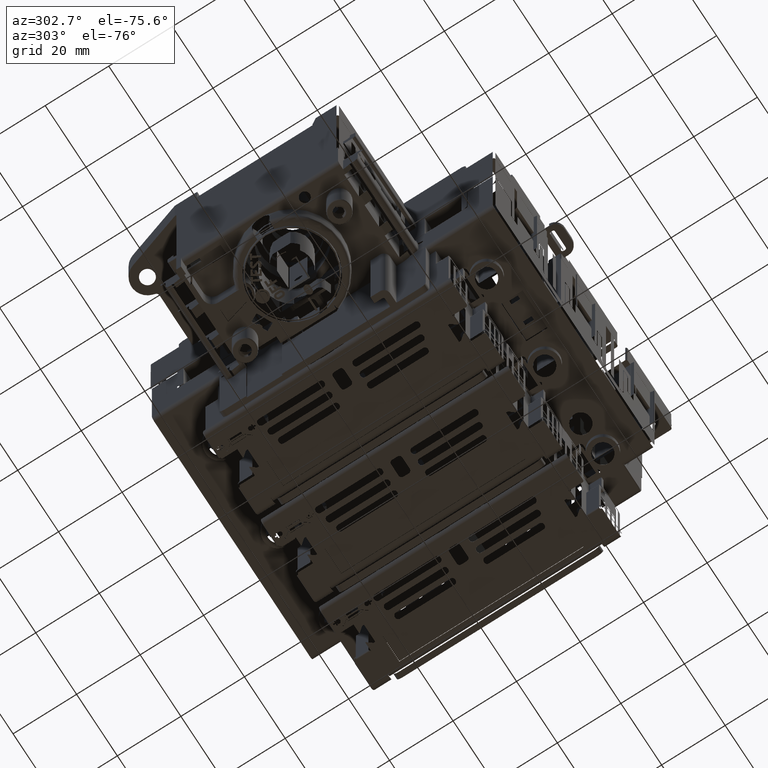
[diagram: clean part render]
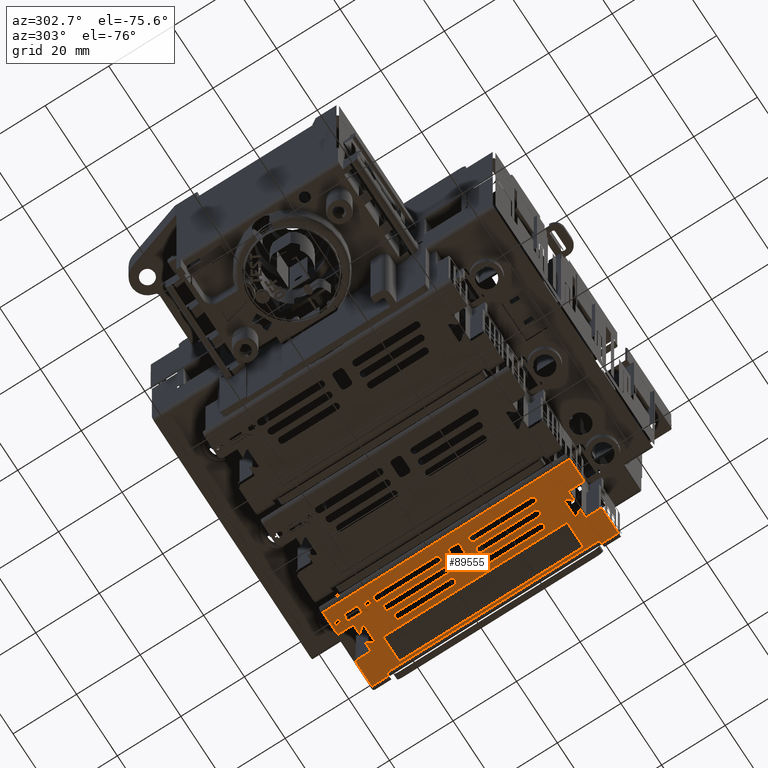
[diagram: same view with one face highlighted and labeled with its STEP entity id]
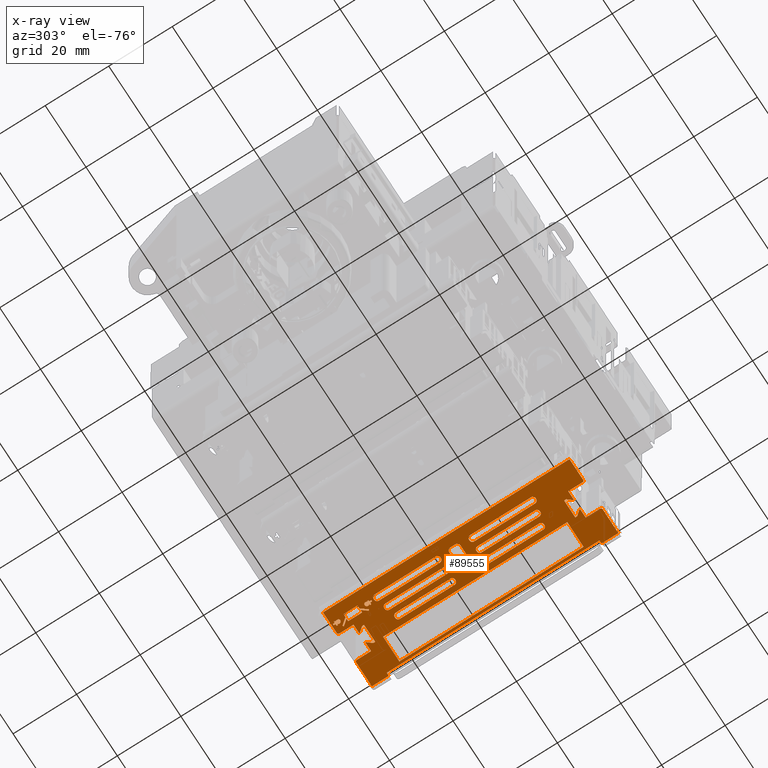
[diagram: x-ray of the same camera — body ghosted, the highlighted face saturated]
A machine part, auxiliary view. The second image highlights one B-rep face of the part: STEP entity #89555.
The next image is the same camera in x-ray: the body ghosted, the highlighted face saturated — about 0% of this face is hidden behind the body in this view.
In plain terms, the highlighted planar face has unit normal (0, 0, 1).
Its self-contained STEP definition (entity closure, byte-faithful):
#85981=CARTESIAN_POINT('',(1.928326947668E2,4.483766985529E2,
-1.150039558470E2));
#85992=DIRECTION('',(-1.E0,0.E0,0.E0));
#85993=VECTOR('',#85992,2.793751345400E0);
#85994=CARTESIAN_POINT('',(1.928326947668E2,4.483766985529E2,
-1.150039558470E2));
#85995=LINE('',#85994,#85993);
#85996=DIRECTION('',(-2.842170941619E-13,-1.E0,0.E0));
#85997=VECTOR('',#85996,2.000000001E-1);
#85998=CARTESIAN_POINT('',(1.900389434214E2,4.483766985529E2,
-1.150039558470E2));
#85999=LINE('',#85998,#85997);
#86000=DIRECTION('',(6.427876096817E-1,-7.660444431231E-1,0.E0));
#86001=VECTOR('',#86000,1.965747960863E0);
#86002=CARTESIAN_POINT('',(1.900389434214E2,4.481766985528E2,
-1.150039558470E2));
#86003=LINE('',#86002,#86001);
#86004=DIRECTION('',(4.783594021182E-14,-1.E0,0.E0));
#86005=VECTOR('',#86004,5.941496980001E-1);
#86006=CARTESIAN_POINT('',(1.913025018544E2,4.466708482508E2,
-1.150039558470E2));
#86007=LINE('',#86006,#86005);
#86008=DIRECTION('',(-1.E0,-2.056892236509E-14,0.E0));
#86009=VECTOR('',#86008,5.527116866100E0);
#86010=CARTESIAN_POINT('',(1.913025018544E2,4.460766985528E2,
-1.150039558470E2));
#86011=LINE('',#86010,#86009);
#86012=DIRECTION('',(-4.783594021182E-14,1.E0,0.E0));
#86013=VECTOR('',#86012,5.941496980001E-1);
#86014=CARTESIAN_POINT('',(1.857753849883E2,4.460766985528E2,
-1.150039558470E2));
#86015=LINE('',#86014,#86013);
#86016=DIRECTION('',(6.427876096865E-1,7.660444431190E-1,0.E0));
#86017=VECTOR('',#86016,1.965747961004E0);
#86018=CARTESIAN_POINT('',(1.857753849883E2,4.466708482508E2,
-1.150039558470E2));
#86019=LINE('',#86018,#86017);
#86020=DIRECTION('',(0.E0,1.E0,0.E0));
#86021=VECTOR('',#86020,2.E-1);
#86022=CARTESIAN_POINT('',(1.870389434214E2,4.481766985529E2,
-1.150039558470E2));
#86023=LINE('',#86022,#86021);
#86024=DIRECTION('',(-1.E0,4.072030325712E-14,0.E0));
#86025=VECTOR('',#86024,2.791895654700E0);
#86026=CARTESIAN_POINT('',(1.870389434214E2,4.483766985529E2,
-1.150039558470E2));
#86027=LINE('',#86026,#86025);
#86028=DIRECTION('',(0.E0,1.E0,0.E0));
#86029=VECTOR('',#86028,4.499996872100E0);
#86030=CARTESIAN_POINT('',(1.842470477667E2,4.483766985529E2,
-1.150039558470E2));
#86031=LINE('',#86030,#86029);
#86032=CARTESIAN_POINT('',(1.842470477667E2,4.528766954250E2,
-1.150039558470E2));
#86033=CARTESIAN_POINT('',(1.842444789216E2,4.529491141024E2,
-1.150039558470E2));
#86034=CARTESIAN_POINT('',(1.842183197302E2,4.530800619497E2,
-1.150039558470E2));
#86035=CARTESIAN_POINT('',(1.841087752309E2,4.532381818731E2,
-1.150039558470E2));
#86036=CARTESIAN_POINT('',(1.839506486461E2,4.533478999235E2,
-1.150039558470E2));
#86037=CARTESIAN_POINT('',(1.838195648105E2,4.533741070336E2,
-1.150039558470E2));
#86038=CARTESIAN_POINT('',(1.837470462026E2,4.533766985529E2,
-1.150039558470E2));
#86040=DIRECTION('',(1.E0,0.E0,0.E0));
#86041=VECTOR('',#86040,6.699996871600E0);
#86042=CARTESIAN_POINT('',(1.770470477668E2,3.757766985529E2,
-1.150039558470E2));
#86043=LINE('',#86042,#86041);
#86044=CARTESIAN_POINT('',(1.837470446384E2,3.757766985529E2,
-1.150039558470E2));
#86045=CARTESIAN_POINT('',(1.838194638078E2,3.757792675572E2,
-1.150039558470E2));
#86046=CARTESIAN_POINT('',(1.839504123014E2,3.758054269455E2,
-1.150039558470E2));
#86047=CARTESIAN_POINT('',(1.841085316772E2,3.759149718987E2,
-1.150039558470E2));
#86048=CARTESIAN_POINT('',(1.842182491759E2,3.760730975281E2,
-1.150039558470E2));
#86049=CARTESIAN_POINT('',(1.842444562262E2,3.762041823727E2,
-1.150039558470E2));
#86050=CARTESIAN_POINT('',(1.842470477668E2,3.762767016812E2,
-1.150039558470E2));
#86052=DIRECTION('',(0.E0,1.E0,0.E0));
#86053=VECTOR('',#86052,4.499996871700E0);
#86054=CARTESIAN_POINT('',(1.842470477668E2,3.762767016812E2,
-1.150039558470E2));
#86055=LINE('',#86054,#86053);
#86056=DIRECTION('',(-1.563199375757E-12,1.E0,0.E0));
#86057=VECTOR('',#86056,1.999993145999E-1);
#86058=CARTESIAN_POINT('',(1.870470477667E2,3.807766985529E2,
-1.150039558470E2));
#86059=LINE('',#86058,#86057);
#86060=DIRECTION('',(-6.427876097018E-1,7.660444431061E-1,0.E0));
#86061=VECTOR('',#86060,1.933079280225E0);
#86062=CARTESIAN_POINT('',(1.870470477667E2,3.809766978675E2,
-1.150039558470E2));
#86063=LINE('',#86062,#86061);
#86064=DIRECTION('',(0.E0,1.E0,0.E0));
#86065=VECTOR('',#86064,6.191753593001E-1);
#86066=CARTESIAN_POINT('',(1.858044883568E2,3.824575225082E2,
-1.150039558470E2));
#86067=LINE('',#86066,#86065);
#86068=DIRECTION('',(1.E0,0.E0,0.E0));
#86069=VECTOR('',#86068,5.485118819800E0);
#86070=CARTESIAN_POINT('',(1.858044883568E2,3.830766978675E2,
-1.150039558470E2));
#86071=LINE('',#86070,#86069);
#86072=DIRECTION('',(0.E0,-1.E0,0.E0));
#86073=VECTOR('',#86072,6.191753592E-1);
#86074=CARTESIAN_POINT('',(1.912896071766E2,3.830766978675E2,
-1.150039558470E2));
#86075=LINE('',#86074,#86073);
#86076=DIRECTION('',(-6.427876097018E-1,-7.660444431061E-1,0.E0));
#86077=VECTOR('',#86076,1.933079280225E0);
#86078=CARTESIAN_POINT('',(1.912896071766E2,3.824575225083E2,
-1.150039558470E2));
#86079=LINE('',#86078,#86077);
#86080=DIRECTION('',(4.263271022659E-13,-1.E0,0.E0));
#86081=VECTOR('',#86080,1.999993147E-1);
#86082=CARTESIAN_POINT('',(1.900470477667E2,3.809766978676E2,
-1.150039558470E2));
#86083=LINE('',#86082,#86081);
#86084=CARTESIAN_POINT('',(1.928326947668E2,3.762766993350E2,
-1.150039558470E2));
#86085=CARTESIAN_POINT('',(1.928352638382E2,3.762042805096E2,
-1.150039558470E2));
#86086=CARTESIAN_POINT('',(1.928614234514E2,3.760733336896E2,
-1.150039558470E2));
#86087=CARTESIAN_POINT('',(1.929709694793E2,3.759152129886E2,
-1.150039558470E2));
#86088=CARTESIAN_POINT('',(1.931290955259E2,3.758054966292E2,
-1.150039558470E2));
#86089=CARTESIAN_POINT('',(1.932601793500E2,3.757792898814E2,
-1.150039558470E2));
#86090=CARTESIAN_POINT('',(1.933326978952E2,3.757766985529E2,
-1.150039558470E2));
#86092=DIRECTION('',(1.E0,6.535886156156E-12,0.E0));
#86093=VECTOR('',#86092,7.714349871600E0);
#86094=CARTESIAN_POINT('',(1.933326978952E2,3.757766985529E2,
-1.150039558470E2));
#86095=LINE('',#86094,#86093);
#86096=DIRECTION('',(-1.E0,-3.410605131648E-13,0.E0));
#86097=VECTOR('',#86096,1.E0);
#86098=CARTESIAN_POINT('',(2.010470477668E2,3.810766985529E2,
-1.150039558470E2));
#86099=LINE('',#86098,#86097);
#86100=DIRECTION('',(1.E0,-1.136868377216E-13,0.E0));
#86101=VECTOR('',#86100,1.E0);
#86102=CARTESIAN_POINT('',(2.000470477668E2,4.480766985529E2,
-1.150039558470E2));
#86103=LINE('',#86102,#86101);
#86104=CARTESIAN_POINT('',(1.933326955489E2,4.533766985529E2,
-1.150039558470E2));
#86105=CARTESIAN_POINT('',(1.932602772153E2,4.533741296406E2,
-1.150039558470E2));
#86106=CARTESIAN_POINT('',(1.931293310414E2,4.533479702243E2,
-1.150039558470E2));
#86107=CARTESIAN_POINT('',(1.929712097928E2,4.532384246503E2,
-1.150039558470E2));
#86108=CARTESIAN_POINT('',(1.928614928815E2,4.530802976483E2,
-1.150039558470E2));
#86109=CARTESIAN_POINT('',(1.928352860740E2,4.529492148334E2,
-1.150039558470E2));
#86110=CARTESIAN_POINT('',(1.928326947668E2,4.528766969888E2,
-1.150039558470E2));
#86112=DIRECTION('',(0.E0,-1.E0,0.E0));
#86113=VECTOR('',#86112,4.499998435900E0);
#86114=CARTESIAN_POINT('',(1.928326947668E2,4.528766969888E2,
-1.150039558470E2));
#86115=LINE('',#86114,#86113);
#86116=DIRECTION('',(0.E0,-1.E0,0.E0));
#86117=VECTOR('',#86116,5.817901187E-1);
#86118=CARTESIAN_POINT('',(1.815407623821E2,4.528864171728E2,
-1.150039558470E2));
#86119=LINE('',#86118,#86117);
#86120=DIRECTION('',(1.E0,1.042154092373E-13,0.E0));
#86121=VECTOR('',#86120,5.454415933E-1);
#86122=CARTESIAN_POINT('',(1.815407623821E2,4.523046270541E2,
-1.150039558470E2));
#86123=LINE('',#86122,#86121);
#86124=DIRECTION('',(0.E0,-1.E0,0.E0));
#86125=VECTOR('',#86124,4.000000000001E-1);
#86126=CARTESIAN_POINT('',(1.820862039754E2,4.523046270541E2,
-1.150039558470E2));
#86127=LINE('',#86126,#86125);
#86128=DIRECTION('',(-1.E0,0.E0,0.E0));
#86129=VECTOR('',#86128,3.977248519E-1);
#86130=CARTESIAN_POINT('',(1.820862039754E2,4.519046270541E2,
-1.150039558470E2));
#86131=LINE('',#86130,#86129);
#86132=CARTESIAN_POINT('',(1.816884791235E2,4.519046270541E2,
-1.150039558470E2));
#86133=CARTESIAN_POINT('',(1.817770465598E2,4.518441426808E2,
-1.150039558470E2));
#86134=CARTESIAN_POINT('',(1.819156534618E2,4.517069768893E2,
-1.150039558470E2));
#86135=CARTESIAN_POINT('',(1.820103454801E2,4.514317578910E2,
-1.150039558470E2));
#86136=CARTESIAN_POINT('',(1.819847224335E2,4.511497061115E2,
-1.150039558470E2));
#86137=CARTESIAN_POINT('',(1.818440124098E2,4.509007077608E2,
-1.150039558470E2));
#86138=CARTESIAN_POINT('',(1.816134950238E2,4.507334259643E2,
-1.150039558470E2));
#86139=CARTESIAN_POINT('',(1.813376444341E2,4.506761523192E2,
-1.150039558470E2));
#86140=CARTESIAN_POINT('',(1.810634321422E2,4.507357908058E2,
-1.150039558470E2));
#86141=CARTESIAN_POINT('',(1.808357804180E2,4.509030352050E2,
-1.150039558470E2));
#86142=CARTESIAN_POINT('',(1.806963102532E2,4.511515583153E2,
-1.150039558470E2));
#86143=CARTESIAN_POINT('',(1.806714351127E2,4.514330472139E2,
-1.150039558470E2));
#86144=CARTESIAN_POINT('',(1.807662776910E2,4.517074539680E2,
-1.150039558470E2));
#86145=CARTESIAN_POINT('',(1.809046707087E2,4.518442876747E2,
-1.150039558470E2));
#86146=CARTESIAN_POINT('',(1.809930456407E2,4.519046270541E2,
-1.150039558470E2));
#86148=DIRECTION('',(-1.E0,0.E0,0.E0));
#86149=VECTOR('',#86148,3.977248518E-1);
#86150=CARTESIAN_POINT('',(1.809930456407E2,4.519046270541E2,
-1.150039558470E2));
#86151=LINE('',#86150,#86149);
#86152=DIRECTION('',(0.E0,1.E0,0.E0));
#86153=VECTOR('',#86152,4.E-1);
#86154=CARTESIAN_POINT('',(1.805953207889E2,4.519046270541E2,
-1.150039558470E2));
#86155=LINE('',#86154,#86153);
#86156=DIRECTION('',(1.E0,0.E0,0.E0));
#86157=VECTOR('',#86156,5.454415932E-1);
#86158=CARTESIAN_POINT('',(1.805953207889E2,4.523046270541E2,
-1.150039558470E2));
#86159=LINE('',#86158,#86157);
#86160=DIRECTION('',(0.E0,1.E0,0.E0));
#86161=VECTOR('',#86160,5.817901187E-1);
#86162=CARTESIAN_POINT('',(1.811407623821E2,4.523046270541E2,
-1.150039558470E2));
#86163=LINE('',#86162,#86161);
#86164=DIRECTION('',(1.E0,-1.421085471520E-13,0.E0));
#86165=VECTOR('',#86164,4.E-1);
#86166=CARTESIAN_POINT('',(1.811407623821E2,4.528864171728E2,
-1.150039558470E2));
#86167=LINE('',#86166,#86165);
#86168=DIRECTION('',(-4.885216940225E-14,1.E0,0.E0));
#86169=VECTOR('',#86168,5.817901186E-1);
#86170=CARTESIAN_POINT('',(1.811407623821E2,4.408056181612E2,
-1.150039558470E2));
#86171=LINE('',#86170,#86169);
#86172=DIRECTION('',(-1.E0,0.E0,0.E0));
#86173=VECTOR('',#86172,5.454415932E-1);
#86174=CARTESIAN_POINT('',(1.811407623821E2,4.413874082798E2,
-1.150039558470E2));
#86175=LINE('',#86174,#86173);
#86176=DIRECTION('',(0.E0,1.E0,0.E0));
#86177=VECTOR('',#86176,4.E-1);
#86178=CARTESIAN_POINT('',(1.805953207889E2,4.413874082798E2,
-1.150039558470E2));
#86179=LINE('',#86178,#86177);
#86180=DIRECTION('',(1.E0,2.858429318121E-13,0.E0));
#86181=VECTOR('',#86180,3.977248519E-1);
#86182=CARTESIAN_POINT('',(1.805953207889E2,4.417874082798E2,
-1.150039558470E2));
#86183=LINE('',#86182,#86181);
#86184=CARTESIAN_POINT('',(1.809930456408E2,4.417874082798E2,
-1.150039558470E2));
#86185=CARTESIAN_POINT('',(1.809044782045E2,4.418478926531E2,
-1.150039558470E2));
#86186=CARTESIAN_POINT('',(1.807658713025E2,4.419850584445E2,
-1.150039558470E2));
#86187=CARTESIAN_POINT('',(1.806711792841E2,4.422602774429E2,
-1.150039558470E2));
#86188=CARTESIAN_POINT('',(1.806968023307E2,4.425423292225E2,
-1.150039558470E2));
#86189=CARTESIAN_POINT('',(1.808375123544E2,4.427913275732E2,
-1.150039558470E2));
#86190=CARTESIAN_POINT('',(1.810680297404E2,4.429586093697E2,
-1.150039558470E2));
#86191=CARTESIAN_POINT('',(1.813438803301E2,4.430158830148E2,
-1.150039558470E2));
#86192=CARTESIAN_POINT('',(1.816180926221E2,4.429562445282E2,
-1.150039558470E2));
#86193=CARTESIAN_POINT('',(1.818457443462E2,4.427890001290E2,
-1.150039558470E2));
#86194=CARTESIAN_POINT('',(1.819852145110E2,4.425404770187E2,
-1.150039558470E2));
#86195=CARTESIAN_POINT('',(1.820100896515E2,4.422589881204E2,
-1.150039558470E2));
#86196=CARTESIAN_POINT('',(1.819152470734E2,4.419845813663E2,
-1.150039558470E2));
#86197=CARTESIAN_POINT('',(1.817768540555E2,4.418477476593E2,
-1.150039558470E2));
#86198=CARTESIAN_POINT('',(1.816884791234E2,4.417874082798E2,
-1.150039558470E2));
#86200=DIRECTION('',(1.E0,0.E0,0.E0));
#86201=VECTOR('',#86200,3.97724852E-1);
#86202=CARTESIAN_POINT('',(1.816884791234E2,4.417874082798E2,
-1.150039558470E2));
#86203=LINE('',#86202,#86201);
#86204=DIRECTION('',(0.E0,-1.E0,0.E0));
#86205=VECTOR('',#86204,3.999999999999E-1);
#86206=CARTESIAN_POINT('',(1.820862039754E2,4.417874082798E2,
-1.150039558470E2));
#86207=LINE('',#86206,#86205);
#86208=DIRECTION('',(-1.E0,-1.042154092373E-13,0.E0));
#86209=VECTOR('',#86208,5.454415933E-1);
#86210=CARTESIAN_POINT('',(1.820862039754E2,4.413874082798E2,
-1.150039558470E2));
#86211=LINE('',#86210,#86209);
#86212=DIRECTION('',(0.E0,-1.E0,0.E0));
#86213=VECTOR('',#86212,5.817901186E-1);
#86214=CARTESIAN_POINT('',(1.815407623821E2,4.413874082798E2,
-1.150039558470E2));
#86215=LINE('',#86214,#86213);
#86216=DIRECTION('',(-1.E0,0.E0,0.E0));
#86217=VECTOR('',#86216,4.E-1);
#86218=CARTESIAN_POINT('',(1.815407623821E2,4.408056181612E2,
-1.150039558470E2));
#86219=LINE('',#86218,#86217);
#86220=DIRECTION('',(-6.237640745845E-1,-7.816126785421E-1,0.E0));
#86221=VECTOR('',#86220,2.213389697090E0);
#86222=CARTESIAN_POINT('',(1.832331577835E2,4.507687445110E2,
-1.150039558470E2));
#86223=LINE('',#86222,#86221);
#86224=DIRECTION('',(1.E0,-6.970435871600E-14,0.E0));
#86225=VECTOR('',#86224,8.154930324E-1);
#86226=CARTESIAN_POINT('',(1.818525248074E2,4.490387310612E2,
-1.150039558470E2));
#86227=LINE('',#86226,#86225);
#86228=DIRECTION('',(0.E0,-1.E0,0.E0));
#86229=VECTOR('',#86228,4.385426788400E0);
#86230=CARTESIAN_POINT('',(1.826680178398E2,4.490387310612E2,
-1.150039558470E2));
#86231=LINE('',#86230,#86229);
#86232=DIRECTION('',(-1.E0,6.970435871600E-14,0.E0));
#86233=VECTOR('',#86232,8.154930324E-1);
#86234=CARTESIAN_POINT('',(1.826680178398E2,4.446533042728E2,
-1.150039558470E2));
#86235=LINE('',#86234,#86233);
#86236=DIRECTION('',(6.237640745900E-1,-7.816126785377E-1,0.E0));
#86237=VECTOR('',#86236,2.213389697230E0);
#86238=CARTESIAN_POINT('',(1.818525248074E2,4.446533042728E2,
-1.150039558470E2));
#86239=LINE('',#86238,#86237);
#86240=DIRECTION('',(-7.816126786642E-1,-6.237640744315E-1,0.E0));
#86241=VECTOR('',#86240,4.000000000440E-1);
#86242=CARTESIAN_POINT('',(1.832331577836E2,4.429232908229E2,
-1.150039558470E2));
#86243=LINE('',#86242,#86241);
#86244=DIRECTION('',(-6.237640745807E-1,7.816126785451E-1,0.E0));
#86245=VECTOR('',#86244,2.532608712776E0);
#86246=CARTESIAN_POINT('',(1.829205127121E2,4.426737851931E2,
-1.150039558470E2));
#86247=LINE('',#86246,#86245);
#86248=DIRECTION('',(-1.E0,0.E0,0.E0));
#86249=VECTOR('',#86248,9.272554575999E-1);
#86250=CARTESIAN_POINT('',(1.813407623821E2,4.446533042728E2,
-1.150039558470E2));
#86251=LINE('',#86250,#86249);
#86252=DIRECTION('',(0.E0,1.E0,0.E0));
#86253=VECTOR('',#86252,4.385426788400E0);
#86254=CARTESIAN_POINT('',(1.804135069245E2,4.446533042728E2,
-1.150039558470E2));
#86255=LINE('',#86254,#86253);
#86256=DIRECTION('',(1.E0,6.130286793667E-14,0.E0));
#86257=VECTOR('',#86256,9.272554576E-1);
#86258=CARTESIAN_POINT('',(1.804135069245E2,4.490387310612E2,
-1.150039558470E2));
#86259=LINE('',#86258,#86257);
#86260=DIRECTION('',(6.237640746E-1,7.816126785298E-1,0.E0));
#86261=VECTOR('',#86260,2.532608712698E0);
#86262=CARTESIAN_POINT('',(1.813407623821E2,4.490387310612E2,
-1.150039558470E2));
#86263=LINE('',#86262,#86261);
#86264=DIRECTION('',(7.816126785669E-1,-6.237640745535E-1,0.E0));
#86265=VECTOR('',#86264,3.999999999657E-1);
#86266=CARTESIAN_POINT('',(1.829205127121E2,4.510182501408E2,
-1.150039558470E2));
#86267=LINE('',#86266,#86265);
#86268=CARTESIAN_POINT('',(1.839389434214E2,4.381766985529E2,
-1.150039558470E2));
#86269=CARTESIAN_POINT('',(1.839435668046E2,4.383070498997E2,
-1.150039558470E2));
#86270=CARTESIAN_POINT('',(1.839906528552E2,4.385427527778E2,
-1.150039558470E2));
#86271=CARTESIAN_POINT('',(1.841878346596E2,4.388273714584E2,
-1.150039558470E2));
#86272=CARTESIAN_POINT('',(1.844724645641E2,4.390248630735E2,
-1.150039558470E2));
#86273=CARTESIAN_POINT('',(1.847084122688E2,4.390720347043E2,
-1.150039558470E2));
#86274=CARTESIAN_POINT('',(1.848389434214E2,4.390766985529E2,
-1.150039558470E2));
#86276=DIRECTION('',(1.E0,-2.842170943040E-13,0.E0));
#86277=VECTOR('',#86276,2.E-1);
#86278=CARTESIAN_POINT('',(1.848389434214E2,4.390766985529E2,
-1.150039558470E2));
#86279=LINE('',#86278,#86277);
#86280=CARTESIAN_POINT('',(1.850389434214E2,4.390766985529E2,
-1.150039558470E2));
#86281=CARTESIAN_POINT('',(1.851692947682E2,4.390720751697E2,
-1.150039558470E2));
#86282=CARTESIAN_POINT('',(1.854049976464E2,4.390249891191E2,
-1.150039558470E2));
#86283=CARTESIAN_POINT('',(1.856896163269E2,4.388278073146E2,
-1.150039558470E2));
#86284=CARTESIAN_POINT('',(1.858871079420E2,4.385431774101E2,
-1.150039558470E2));
#86285=CARTESIAN_POINT('',(1.859342795728E2,4.383072297055E2,
-1.150039558470E2));
#86286=CARTESIAN_POINT('',(1.859389434214E2,4.381766985529E2,
-1.150039558470E2));
#86288=DIRECTION('',(0.E0,-1.E0,0.E0));
#86289=VECTOR('',#86288,1.82E1);
#86290=CARTESIAN_POINT('',(1.859389434214E2,4.381766985529E2,
-1.150039558470E2));
#86291=LINE('',#86290,#86289);
#86292=CARTESIAN_POINT('',(1.859389434214E2,4.199766985529E2,
-1.150039558470E2));
#86293=CARTESIAN_POINT('',(1.859343200382E2,4.198463472061E2,
-1.150039558470E2));
#86294=CARTESIAN_POINT('',(1.858872339876E2,4.196106443278E2,
-1.150039558470E2));
#86295=CARTESIAN_POINT('',(1.856900521830E2,4.193260256472E2,
-1.150039558470E2));
#86296=CARTESIAN_POINT('',(1.854054222785E2,4.191285340323E2,
-1.150039558470E2));
#86297=CARTESIAN_POINT('',(1.851694745739E2,4.190813624015E2,
-1.150039558470E2));
#86298=CARTESIAN_POINT('',(1.850389434214E2,4.190766985529E2,
-1.150039558470E2));
#86300=DIRECTION('',(-1.E0,5.684341886080E-13,0.E0));
#86301=VECTOR('',#86300,2.E-1);
#86302=CARTESIAN_POINT('',(1.850389434214E2,4.190766985529E2,
-1.150039558470E2));
#86303=LINE('',#86302,#86301);
#86304=CARTESIAN_POINT('',(1.848389434214E2,4.190766985529E2,
-1.150039558470E2));
#86305=CARTESIAN_POINT('',(1.847085920746E2,4.190813219361E2,
-1.150039558470E2));
#86306=CARTESIAN_POINT('',(1.844728891963E2,4.191284079867E2,
-1.150039558470E2));
#86307=CARTESIAN_POINT('',(1.841882705157E2,4.193255897913E2,
-1.150039558470E2));
#86308=CARTESIAN_POINT('',(1.839907789008E2,4.196102196958E2,
-1.150039558470E2));
#86309=CARTESIAN_POINT('',(1.839436072700E2,4.198461674004E2,
-1.150039558470E2));
#86310=CARTESIAN_POINT('',(1.839389434214E2,4.199766985529E2,
-1.150039558470E2));
#86312=DIRECTION('',(0.E0,1.E0,0.E0));
#86313=VECTOR('',#86312,1.82E1);
#86314=CARTESIAN_POINT('',(1.839389434214E2,4.199766985529E2,
-1.150039558470E2));
#86315=LINE('',#86314,#86313);
#86316=CARTESIAN_POINT('',(1.803389434214E2,4.391766985529E2,
-1.150039558470E2));
#86317=CARTESIAN_POINT('',(1.803435668046E2,4.393070498997E2,
-1.150039558470E2));
#86318=CARTESIAN_POINT('',(1.803906528552E2,4.395427527778E2,
-1.150039558470E2));
#86319=CARTESIAN_POINT('',(1.805878346596E2,4.398273714584E2,
-1.150039558470E2));
#86320=CARTESIAN_POINT('',(1.808724645641E2,4.400248630735E2,
-1.150039558470E2));
#86321=CARTESIAN_POINT('',(1.811084122688E2,4.400720347043E2,
-1.150039558470E2));
#86322=CARTESIAN_POINT('',(1.812389434214E2,4.400766985529E2,
-1.150039558470E2));
#86324=DIRECTION('',(1.E0,2.842170943041E-13,0.E0));
#86325=VECTOR('',#86324,2.E-1);
#86326=CARTESIAN_POINT('',(1.812389434214E2,4.400766985529E2,
-1.150039558470E2));
#86327=LINE('',#86326,#86325);
#86328=CARTESIAN_POINT('',(1.814389434214E2,4.400766985529E2,
-1.150039558470E2));
#86329=CARTESIAN_POINT('',(1.815692947682E2,4.400720751697E2,
-1.150039558470E2));
#86330=CARTESIAN_POINT('',(1.818049976463E2,4.400249891191E2,
-1.150039558470E2));
#86331=CARTESIAN_POINT('',(1.820896163269E2,4.398278073147E2,
-1.150039558470E2));
#86332=CARTESIAN_POINT('',(1.822871079420E2,4.395431774102E2,
-1.150039558470E2));
#86333=CARTESIAN_POINT('',(1.823342795728E2,4.393072297055E2,
-1.150039558470E2));
#86334=CARTESIAN_POINT('',(1.823389434214E2,4.391766985529E2,
-1.150039558470E2));
#86336=DIRECTION('',(0.E0,-1.E0,0.E0));
#86337=VECTOR('',#86336,1.92E1);
#86338=CARTESIAN_POINT('',(1.823389434214E2,4.391766985529E2,
-1.150039558470E2));
#86339=LINE('',#86338,#86337);
#86340=CARTESIAN_POINT('',(1.823389434214E2,4.199766985529E2,
-1.150039558470E2));
#86341=CARTESIAN_POINT('',(1.823343200382E2,4.198463472061E2,
-1.150039558470E2));
#86342=CARTESIAN_POINT('',(1.822872339876E2,4.196106443278E2,
-1.150039558470E2));
#86343=CARTESIAN_POINT('',(1.820900521830E2,4.193260256472E2,
-1.150039558470E2));
#86344=CARTESIAN_POINT('',(1.818054222785E2,4.191285340323E2,
-1.150039558470E2));
#86345=CARTESIAN_POINT('',(1.815694745739E2,4.190813624015E2,
-1.150039558470E2));
#86346=CARTESIAN_POINT('',(1.814389434214E2,4.190766985529E2,
-1.150039558470E2));
#86348=DIRECTION('',(-1.E0,0.E0,0.E0));
#86349=VECTOR('',#86348,2.E-1);
#86350=CARTESIAN_POINT('',(1.814389434214E2,4.190766985529E2,
-1.150039558470E2));
#86351=LINE('',#86350,#86349);
#86352=CARTESIAN_POINT('',(1.812389434214E2,4.190766985529E2,
-1.150039558470E2));
#86353=CARTESIAN_POINT('',(1.811085920746E2,4.190813219361E2,
-1.150039558470E2));
#86354=CARTESIAN_POINT('',(1.808728891963E2,4.191284079867E2,
-1.150039558470E2));
#86355=CARTESIAN_POINT('',(1.805882705157E2,4.193255897913E2,
-1.150039558470E2));
#86356=CARTESIAN_POINT('',(1.803907789008E2,4.196102196958E2,
-1.150039558470E2));
#86357=CARTESIAN_POINT('',(1.803436072700E2,4.198461674004E2,
-1.150039558470E2));
#86358=CARTESIAN_POINT('',(1.803389434214E2,4.199766985529E2,
-1.150039558470E2));
#86360=DIRECTION('',(0.E0,1.E0,0.E0));
#86361=VECTOR('',#86360,1.92E1);
#86362=CARTESIAN_POINT('',(1.803389434214E2,4.199766985529E2,
-1.150039558470E2));
#86363=LINE('',#86362,#86361);
#86364=CARTESIAN_POINT('',(1.839389434214E2,4.091766985529E2,
-1.150039558470E2));
#86365=CARTESIAN_POINT('',(1.839435668046E2,4.093070498997E2,
-1.150039558470E2));
#86366=CARTESIAN_POINT('',(1.839906528552E2,4.095427527780E2,
-1.150039558470E2));
#86367=CARTESIAN_POINT('',(1.841878346598E2,4.098273714586E2,
-1.150039558470E2));
#86368=CARTESIAN_POINT('',(1.844724645643E2,4.100248630735E2,
-1.150039558470E2));
#86369=CARTESIAN_POINT('',(1.847084122689E2,4.100720347043E2,
-1.150039558470E2));
#86370=CARTESIAN_POINT('',(1.848389434214E2,4.100766985529E2,
-1.150039558470E2));
#86372=DIRECTION('',(1.E0,0.E0,0.E0));
#86373=VECTOR('',#86372,2.E-1);
#86374=CARTESIAN_POINT('',(1.848389434214E2,4.100766985529E2,
-1.150039558470E2));
#86375=LINE('',#86374,#86373);
#86376=CARTESIAN_POINT('',(1.850389434214E2,4.100766985529E2,
-1.150039558470E2));
#86377=CARTESIAN_POINT('',(1.851692947682E2,4.100720751697E2,
-1.150039558470E2));
#86378=CARTESIAN_POINT('',(1.854049976463E2,4.100249891191E2,
-1.150039558470E2));
#86379=CARTESIAN_POINT('',(1.856896163269E2,4.098278073147E2,
-1.150039558470E2));
#86380=CARTESIAN_POINT('',(1.858871079420E2,4.095431774102E2,
-1.150039558470E2));
#86381=CARTESIAN_POINT('',(1.859342795728E2,4.093072297055E2,
-1.150039558470E2));
#86382=CARTESIAN_POINT('',(1.859389434214E2,4.091766985529E2,
-1.150039558470E2));
#86384=DIRECTION('',(0.E0,-1.E0,0.E0));
#86385=VECTOR('',#86384,1.820000000530E1);
#86386=CARTESIAN_POINT('',(1.859389434214E2,4.091766985529E2,
-1.150039558470E2));
#86387=LINE('',#86386,#86385);
#86388=CARTESIAN_POINT('',(1.859389434214E2,3.909766985476E2,
-1.150039558470E2));
#86389=CARTESIAN_POINT('',(1.859343200375E2,3.908463472009E2,
-1.150039558470E2));
#86390=CARTESIAN_POINT('',(1.858872339855E2,3.906106443231E2,
-1.150039558470E2));
#86391=CARTESIAN_POINT('',(1.856900521793E2,3.903260256434E2,
-1.150039558470E2));
#86392=CARTESIAN_POINT('',(1.854054222732E2,3.901285340300E2,
-1.150039558470E2));
#86393=CARTESIAN_POINT('',(1.851694745685E2,3.900813624007E2,
-1.150039558470E2));
#86394=CARTESIAN_POINT('',(1.850389434161E2,3.900766985529E2,
-1.150039558470E2));
#86396=DIRECTION('',(-1.E0,5.684342036716E-13,0.E0));
#86397=VECTOR('',#86396,1.999999947E-1);
#86398=CARTESIAN_POINT('',(1.850389434161E2,3.900766985529E2,
-1.150039558470E2));
#86399=LINE('',#86398,#86397);
#86400=CARTESIAN_POINT('',(1.848389434214E2,3.900766985529E2,
-1.150039558470E2));
#86401=CARTESIAN_POINT('',(1.847085920746E2,3.900813219361E2,
-1.150039558470E2));
#86402=CARTESIAN_POINT('',(1.844728891965E2,3.901284079867E2,
-1.150039558470E2));
#86403=CARTESIAN_POINT('',(1.841882705159E2,3.903255897911E2,
-1.150039558470E2));
#86404=CARTESIAN_POINT('',(1.839907789008E2,3.906102196956E2,
-1.150039558470E2));
#86405=CARTESIAN_POINT('',(1.839436072700E2,3.908461674003E2,
-1.150039558470E2));
#86406=CARTESIAN_POINT('',(1.839389434214E2,3.909766985529E2,
-1.150039558470E2));
#86408=DIRECTION('',(0.E0,1.E0,0.E0));
#86409=VECTOR('',#86408,1.82E1);
#86410=CARTESIAN_POINT('',(1.839389434214E2,3.909766985529E2,
-1.150039558470E2));
#86411=LINE('',#86410,#86409);
#86412=CARTESIAN_POINT('',(1.803389434214E2,4.091766985529E2,
-1.150039558470E2));
#86413=CARTESIAN_POINT('',(1.803435668046E2,4.093070498997E2,
-1.150039558470E2));
#86414=CARTESIAN_POINT('',(1.803906528552E2,4.095427527778E2,
-1.150039558470E2));
#86415=CARTESIAN_POINT('',(1.805878346596E2,4.098273714584E2,
-1.150039558470E2));
#86416=CARTESIAN_POINT('',(1.808724645641E2,4.100248630735E2,
-1.150039558470E2));
#86417=CARTESIAN_POINT('',(1.811084122688E2,4.100720347043E2,
-1.150039558470E2));
#86418=CARTESIAN_POINT('',(1.812389434214E2,4.100766985529E2,
-1.150039558470E2));
#86420=DIRECTION('',(1.E0,0.E0,0.E0));
#86421=VECTOR('',#86420,2.E-1);
#86422=CARTESIAN_POINT('',(1.812389434214E2,4.100766985529E2,
-1.150039558470E2));
#86423=LINE('',#86422,#86421);
#86424=CARTESIAN_POINT('',(1.814389434214E2,4.100766985529E2,
-1.150039558470E2));
#86425=CARTESIAN_POINT('',(1.815692947682E2,4.100720751697E2,
-1.150039558470E2));
#86426=CARTESIAN_POINT('',(1.818049976465E2,4.100249891191E2,
-1.150039558470E2));
#86427=CARTESIAN_POINT('',(1.820896163271E2,4.098278073145E2,
-1.150039558470E2));
#86428=CARTESIAN_POINT('',(1.822871079420E2,4.095431774100E2,
-1.150039558470E2));
#86429=CARTESIAN_POINT('',(1.823342795728E2,4.093072297054E2,
-1.150039558470E2));
#86430=CARTESIAN_POINT('',(1.823389434214E2,4.091766985529E2,
-1.150039558470E2));
#86432=DIRECTION('',(0.E0,-1.E0,0.E0));
#86433=VECTOR('',#86432,1.919999999990E1);
#86434=CARTESIAN_POINT('',(1.823389434214E2,4.091766985529E2,
-1.150039558470E2));
#86435=LINE('',#86434,#86433);
#86436=CARTESIAN_POINT('',(1.823389434214E2,3.899766985530E2,
-1.150039558470E2));
#86437=CARTESIAN_POINT('',(1.823343200382E2,3.898463472062E2,
-1.150039558470E2));
#86438=CARTESIAN_POINT('',(1.822872339876E2,3.896106443279E2,
-1.150039558470E2));
#86439=CARTESIAN_POINT('',(1.820900521831E2,3.893260256473E2,
-1.150039558470E2));
#86440=CARTESIAN_POINT('',(1.818054222785E2,3.891285340323E2,
-1.150039558470E2));
#86441=CARTESIAN_POINT('',(1.815694745739E2,3.890813624015E2,
-1.150039558470E2));
#86442=CARTESIAN_POINT('',(1.814389434214E2,3.890766985529E2,
-1.150039558470E2));
#86444=DIRECTION('',(-1.E0,-2.842170943040E-13,0.E0));
#86445=VECTOR('',#86444,2.E-1);
#86446=CARTESIAN_POINT('',(1.814389434214E2,3.890766985529E2,
-1.150039558470E2));
#86447=LINE('',#86446,#86445);
#86448=CARTESIAN_POINT('',(1.812389434214E2,3.890766985529E2,
-1.150039558470E2));
#86449=CARTESIAN_POINT('',(1.811085920746E2,3.890813219361E2,
-1.150039558470E2));
#86450=CARTESIAN_POINT('',(1.808728891963E2,3.891284079867E2,
-1.150039558470E2));
#86451=CARTESIAN_POINT('',(1.805882705158E2,3.893255897913E2,
-1.150039558470E2));
#86452=CARTESIAN_POINT('',(1.803907789008E2,3.896102196958E2,
-1.150039558470E2));
#86453=CARTESIAN_POINT('',(1.803436072700E2,3.898461674004E2,
-1.150039558470E2));
#86454=CARTESIAN_POINT('',(1.803389434214E2,3.899766985529E2,
-1.150039558470E2));
#86456=DIRECTION('',(0.E0,1.E0,0.E0));
#86457=VECTOR('',#86456,1.92E1);
#86458=CARTESIAN_POINT('',(1.803389434214E2,3.899766985529E2,
-1.150039558470E2));
#86459=LINE('',#86458,#86457);
#86460=CARTESIAN_POINT('',(1.875389434214E2,4.091766985529E2,
-1.150039558470E2));
#86461=CARTESIAN_POINT('',(1.875435668046E2,4.093070498997E2,
-1.150039558470E2));
#86462=CARTESIAN_POINT('',(1.875906528552E2,4.095427527779E2,
-1.150039558470E2));
#86463=CARTESIAN_POINT('',(1.877878346597E2,4.098273714584E2,
-1.150039558470E2));
#86464=CARTESIAN_POINT('',(1.880724645642E2,4.100248630735E2,
-1.150039558470E2));
#86465=CARTESIAN_POINT('',(1.883084122688E2,4.100720347043E2,
-1.150039558470E2));
#86466=CARTESIAN_POINT('',(1.884389434214E2,4.100766985529E2,
-1.150039558470E2));
#86468=DIRECTION('',(1.E0,0.E0,0.E0));
#86469=VECTOR('',#86468,2.E-1);
#86470=CARTESIAN_POINT('',(1.884389434214E2,4.100766985529E2,
-1.150039558470E2));
#86471=LINE('',#86470,#86469);
#86472=CARTESIAN_POINT('',(1.886389434214E2,4.100766985529E2,
-1.150039558470E2));
#86473=CARTESIAN_POINT('',(1.887692947682E2,4.100720751697E2,
-1.150039558470E2));
#86474=CARTESIAN_POINT('',(1.890049976464E2,4.100249891191E2,
-1.150039558470E2));
#86475=CARTESIAN_POINT('',(1.892896163269E2,4.098278073146E2,
-1.150039558470E2));
#86476=CARTESIAN_POINT('',(1.894871079420E2,4.095431774101E2,
-1.150039558470E2));
#86477=CARTESIAN_POINT('',(1.895342795728E2,4.093072297055E2,
-1.150039558470E2));
#86478=CARTESIAN_POINT('',(1.895389434214E2,4.091766985529E2,
-1.150039558470E2));
#86480=DIRECTION('',(0.E0,-1.E0,0.E0));
#86481=VECTOR('',#86480,1.720000000010E1);
#86482=CARTESIAN_POINT('',(1.895389434214E2,4.091766985529E2,
-1.150039558470E2));
#86483=LINE('',#86482,#86481);
#86484=CARTESIAN_POINT('',(1.895389434214E2,3.919766985528E2,
-1.150039558470E2));
#86485=CARTESIAN_POINT('',(1.895343200382E2,3.918463472060E2,
-1.150039558470E2));
#86486=CARTESIAN_POINT('',(1.894872339876E2,3.916106443279E2,
-1.150039558470E2));
#86487=CARTESIAN_POINT('',(1.892900521831E2,3.913260256472E2,
-1.150039558470E2));
#86488=CARTESIAN_POINT('',(1.890054222784E2,3.911285340322E2,
-1.150039558470E2));
#86489=CARTESIAN_POINT('',(1.887694745739E2,3.910813624014E2,
-1.150039558470E2));
#86490=CARTESIAN_POINT('',(1.886389434214E2,3.910766985529E2,
-1.150039558470E2));
#86492=DIRECTION('',(-1.E0,0.E0,0.E0));
#86493=VECTOR('',#86492,2.E-1);
#86494=CARTESIAN_POINT('',(1.886389434214E2,3.910766985529E2,
-1.150039558470E2));
#86495=LINE('',#86494,#86493);
#86496=CARTESIAN_POINT('',(1.884389434214E2,3.910766985529E2,
-1.150039558470E2));
#86497=CARTESIAN_POINT('',(1.883085920746E2,3.910813219361E2,
-1.150039558470E2));
#86498=CARTESIAN_POINT('',(1.880728891964E2,3.911284079867E2,
-1.150039558470E2));
#86499=CARTESIAN_POINT('',(1.877882705159E2,3.913255897912E2,
-1.150039558470E2));
#86500=CARTESIAN_POINT('',(1.875907789008E2,3.916102196957E2,
-1.150039558470E2));
#86501=CARTESIAN_POINT('',(1.875436072700E2,3.918461674003E2,
-1.150039558470E2));
#86502=CARTESIAN_POINT('',(1.875389434214E2,3.919766985529E2,
-1.150039558470E2));
#86504=DIRECTION('',(0.E0,1.E0,0.E0));
#86505=VECTOR('',#86504,1.72E1);
#86506=CARTESIAN_POINT('',(1.875389434214E2,3.919766985529E2,
-1.150039558470E2));
#86507=LINE('',#86506,#86505);
#86508=CARTESIAN_POINT('',(1.875389434214E2,4.371766985529E2,
-1.150039558470E2));
#86509=CARTESIAN_POINT('',(1.875435668046E2,4.373070498997E2,
-1.150039558470E2));
#86510=CARTESIAN_POINT('',(1.875906528552E2,4.375427527778E2,
-1.150039558470E2));
#86511=CARTESIAN_POINT('',(1.877878346596E2,4.378273714584E2,
-1.150039558470E2));
#86512=CARTESIAN_POINT('',(1.880724645641E2,4.380248630735E2,
-1.150039558470E2));
#86513=CARTESIAN_POINT('',(1.883084122688E2,4.380720347043E2,
-1.150039558470E2));
#86514=CARTESIAN_POINT('',(1.884389434214E2,4.380766985529E2,
-1.150039558470E2));
#86516=DIRECTION('',(1.E0,2.842170943040E-13,0.E0));
#86517=VECTOR('',#86516,2.E-1);
#86518=CARTESIAN_POINT('',(1.884389434214E2,4.380766985529E2,
-1.150039558470E2));
#86519=LINE('',#86518,#86517);
#86520=CARTESIAN_POINT('',(1.886389434214E2,4.380766985529E2,
-1.150039558470E2));
#86521=CARTESIAN_POINT('',(1.887692947682E2,4.380720751697E2,
-1.150039558470E2));
#86522=CARTESIAN_POINT('',(1.890049976465E2,4.380249891191E2,
-1.150039558470E2));
#86523=CARTESIAN_POINT('',(1.892896163271E2,4.378278073145E2,
-1.150039558470E2));
#86524=CARTESIAN_POINT('',(1.894871079420E2,4.375431774100E2,
-1.150039558470E2));
#86525=CARTESIAN_POINT('',(1.895342795728E2,4.373072297054E2,
-1.150039558470E2));
#86526=CARTESIAN_POINT('',(1.895389434214E2,4.371766985529E2,
-1.150039558470E2));
#86528=DIRECTION('',(0.E0,-1.E0,0.E0));
#86529=VECTOR('',#86528,1.72E1);
#86530=CARTESIAN_POINT('',(1.895389434214E2,4.371766985529E2,
-1.150039558470E2));
#86531=LINE('',#86530,#86529);
#86532=CARTESIAN_POINT('',(1.895389434214E2,4.199766985529E2,
-1.150039558470E2));
#86533=CARTESIAN_POINT('',(1.895343200382E2,4.198463472061E2,
-1.150039558470E2));
#86534=CARTESIAN_POINT('',(1.894872339876E2,4.196106443280E2,
-1.150039558470E2));
#86535=CARTESIAN_POINT('',(1.892900521832E2,4.193260256474E2,
-1.150039558470E2));
#86536=CARTESIAN_POINT('',(1.890054222787E2,4.191285340323E2,
-1.150039558470E2));
#86537=CARTESIAN_POINT('',(1.887694745740E2,4.190813624015E2,
-1.150039558470E2));
#86538=CARTESIAN_POINT('',(1.886389434214E2,4.190766985529E2,
-1.150039558470E2));
#86540=DIRECTION('',(-1.E0,0.E0,0.E0));
#86541=VECTOR('',#86540,2.E-1);
#86542=CARTESIAN_POINT('',(1.886389434214E2,4.190766985529E2,
-1.150039558470E2));
#86543=LINE('',#86542,#86541);
#86544=CARTESIAN_POINT('',(1.884389434214E2,4.190766985529E2,
-1.150039558470E2));
#86545=CARTESIAN_POINT('',(1.883085920746E2,4.190813219361E2,
-1.150039558470E2));
#86546=CARTESIAN_POINT('',(1.880728891964E2,4.191284079867E2,
-1.150039558470E2));
#86547=CARTESIAN_POINT('',(1.877882705159E2,4.193255897912E2,
-1.150039558470E2));
#86548=CARTESIAN_POINT('',(1.875907789008E2,4.196102196957E2,
-1.150039558470E2));
#86549=CARTESIAN_POINT('',(1.875436072700E2,4.198461674003E2,
-1.150039558470E2));
#86550=CARTESIAN_POINT('',(1.875389434214E2,4.199766985529E2,
-1.150039558470E2));
#86552=DIRECTION('',(0.E0,1.E0,0.E0));
#86553=VECTOR('',#86552,1.72E1);
#86554=CARTESIAN_POINT('',(1.875389434214E2,4.199766985529E2,
-1.150039558470E2));
#86555=LINE('',#86554,#86553);
#86556=DIRECTION('',(0.E0,1.E0,0.E0));
#86557=VECTOR('',#86556,5.8E1);
#86558=CARTESIAN_POINT('',(1.912389434214E2,3.855766985529E2,
-1.150039558470E2));
#86559=LINE('',#86558,#86557);
#86560=DIRECTION('',(1.E0,0.E0,0.E0));
#86561=VECTOR('',#86560,8.008104345400E0);
#86562=CARTESIAN_POINT('',(1.912389434214E2,4.435766985529E2,
-1.150039558470E2));
#86563=LINE('',#86562,#86561);
#86564=DIRECTION('',(0.E0,-1.E0,0.E0));
#86565=VECTOR('',#86564,5.8E1);
#86566=CARTESIAN_POINT('',(1.992470477668E2,4.435766985529E2,
-1.150039558470E2));
#86567=LINE('',#86566,#86565);
#86568=DIRECTION('',(-1.E0,1.419647307504E-14,0.E0));
#86569=VECTOR('',#86568,8.008104345400E0);
#86570=CARTESIAN_POINT('',(1.992470477668E2,3.855766985529E2,
-1.150039558470E2));
#86571=LINE('',#86570,#86569);
#86572=CARTESIAN_POINT('',(1.812389434213E2,4.128266985529E2,
-1.150039558470E2));
#86573=CARTESIAN_POINT('',(1.811085920745E2,4.128313219361E2,
-1.150039558470E2));
#86574=CARTESIAN_POINT('',(1.808728891963E2,4.128784079867E2,
-1.150039558470E2));
#86575=CARTESIAN_POINT('',(1.805882705156E2,4.130755897912E2,
-1.150039558470E2));
#86576=CARTESIAN_POINT('',(1.803907789007E2,4.133602196959E2,
-1.150039558470E2));
#86577=CARTESIAN_POINT('',(1.803436072699E2,4.135961674004E2,
-1.150039558470E2));
#86578=CARTESIAN_POINT('',(1.803389434214E2,4.137266985529E2,
-1.150039558470E2));
#86580=DIRECTION('',(-1.671865260612E-14,1.E0,0.E0));
#86581=VECTOR('',#86580,1.7E0);
#86582=CARTESIAN_POINT('',(1.803389434214E2,4.137266985529E2,
-1.150039558470E2));
#86583=LINE('',#86582,#86581);
#86584=CARTESIAN_POINT('',(1.803389434214E2,4.154266985529E2,
-1.150039558470E2));
#86585=CARTESIAN_POINT('',(1.803435668046E2,4.155570498997E2,
-1.150039558470E2));
#86586=CARTESIAN_POINT('',(1.803906528552E2,4.157927527779E2,
-1.150039558470E2));
#86587=CARTESIAN_POINT('',(1.805878346597E2,4.160773714584E2,
-1.150039558470E2));
#86588=CARTESIAN_POINT('',(1.808724645642E2,4.162748630735E2,
-1.150039558470E2));
#86589=CARTESIAN_POINT('',(1.811084122688E2,4.163220347043E2,
-1.150039558470E2));
#86590=CARTESIAN_POINT('',(1.812389434214E2,4.163266985529E2,
-1.150039558470E2));
#86592=DIRECTION('',(1.E0,0.E0,0.E0));
#86593=VECTOR('',#86592,3.699999994600E0);
#86594=CARTESIAN_POINT('',(1.812389434214E2,4.163266985529E2,
-1.150039558470E2));
#86595=LINE('',#86594,#86593);
#86596=CARTESIAN_POINT('',(1.849389434160E2,4.163266985529E2,
-1.150039558470E2));
#86597=CARTESIAN_POINT('',(1.850692947627E2,4.163220751705E2,
-1.150039558470E2));
#86598=CARTESIAN_POINT('',(1.853049976411E2,4.162749891214E2,
-1.150039558470E2));
#86599=CARTESIAN_POINT('',(1.855896163231E2,4.160778073185E2,
-1.150039558470E2));
#86600=CARTESIAN_POINT('',(1.857871079399E2,4.157931774149E2,
-1.150039558470E2));
#86601=CARTESIAN_POINT('',(1.858342795721E2,4.155572297106E2,
-1.150039558470E2));
#86602=CARTESIAN_POINT('',(1.858389434214E2,4.154266985582E2,
-1.150039558470E2));
#86604=DIRECTION('',(0.E0,-1.E0,0.E0));
#86605=VECTOR('',#86604,1.700000005300E0);
#86606=CARTESIAN_POINT('',(1.858389434214E2,4.154266985582E2,
-1.150039558470E2));
#86607=LINE('',#86606,#86605);
#86608=CARTESIAN_POINT('',(1.858389434214E2,4.137266985529E2,
-1.150039558470E2));
#86609=CARTESIAN_POINT('',(1.858343200382E2,4.135963472061E2,
-1.150039558470E2));
#86610=CARTESIAN_POINT('',(1.857872339876E2,4.133606443280E2,
-1.150039558470E2));
#86611=CARTESIAN_POINT('',(1.855900521832E2,4.130760256474E2,
-1.150039558470E2));
#86612=CARTESIAN_POINT('',(1.853054222787E2,4.128785340323E2,
-1.150039558470E2));
#86613=CARTESIAN_POINT('',(1.850694745740E2,4.128313624015E2,
-1.150039558470E2));
#86614=CARTESIAN_POINT('',(1.849389434214E2,4.128266985529E2,
-1.150039558470E2));
#86616=DIRECTION('',(-1.E0,0.E0,0.E0));
#86617=VECTOR('',#86616,3.700000000100E0);
#86618=CARTESIAN_POINT('',(1.849389434214E2,4.128266985529E2,
-1.150039558470E2));
#86619=LINE('',#86618,#86617);
#86620=DIRECTION('',(1.E0,-5.429820382723E-13,1.845290520691E-13));
#86621=VECTOR('',#86620,6.699998435799E0);
#86622=CARTESIAN_POINT('',(1.770470477668E2,4.533766985529E2,
-1.150039558470E2));
#86623=LINE('',#86622,#86621);
#86671=DIRECTION('',(0.E0,1.E0,-1.611540225435E-14));
#86672=VECTOR('',#86671,7.76E1);
#86673=CARTESIAN_POINT('',(1.770470477668E2,3.757766985529E2,
-1.150039558470E2));
#86674=LINE('',#86673,#86672);
#86925=DIRECTION('',(-1.E0,2.030122102244E-14,0.E0));
#86926=VECTOR('',#86925,2.799999999900E0);
#86927=CARTESIAN_POINT('',(1.870470477667E2,3.807766985529E2,
-1.150039558470E2));
#86928=LINE('',#86927,#86926);
#87487=DIRECTION('',(0.E0,-1.E0,0.E0));
#87488=VECTOR('',#87487,5.299999999950E0);
#87489=CARTESIAN_POINT('',(2.010470477668E2,3.810766985529E2,
-1.150039558470E2));
#87490=LINE('',#87489,#87488);
#87782=DIRECTION('',(0.E0,1.E0,0.E0));
#87783=VECTOR('',#87782,4.499999217900E0);
#87784=CARTESIAN_POINT('',(1.928326947668E2,3.762766993350E2,
-1.150039558470E2));
#87785=LINE('',#87784,#87783);
#87798=DIRECTION('',(-1.E0,0.E0,0.E0));
#87799=VECTOR('',#87798,2.785647000100E0);
#87800=CARTESIAN_POINT('',(1.928326947668E2,3.807766985529E2,
-1.150039558470E2));
#87801=LINE('',#87800,#87799);
#87854=DIRECTION('',(0.E0,-1.E0,0.E0));
#87855=VECTOR('',#87854,6.7E1);
#87856=CARTESIAN_POINT('',(2.000470477668E2,4.480766985529E2,
-1.150039558470E2));
#87857=LINE('',#87856,#87855);
#87867=DIRECTION('',(2.252286407695E-13,-1.E0,1.742840672621E-13));
#87868=VECTOR('',#87867,5.299999999995E0);
#87869=CARTESIAN_POINT('',(2.010470477668E2,4.533766985529E2,
-1.150039558470E2));
#87870=LINE('',#87869,#87868);
#87891=DIRECTION('',(1.E0,-7.073786698436E-13,-1.215807088794E-13));
#87892=VECTOR('',#87891,7.714352217948E0);
#87893=CARTESIAN_POINT('',(1.933326955489E2,4.533766985529E2,
-1.150039558470E2));
#87894=LINE('',#87893,#87892);
#88449=VERTEX_POINT('',#85981);
#88450=CARTESIAN_POINT('',(1.928326947668E2,4.528766985529E2,
-1.150039558470E2));
#88452=VERTEX_POINT('',#88450);
#88454=CARTESIAN_POINT('',(1.900389434214E2,4.483766985529E2,
-1.150039558470E2));
#88455=VERTEX_POINT('',#88454);
#88456=CARTESIAN_POINT('',(1.900389434214E2,4.481766985528E2,
-1.150039558470E2));
#88457=VERTEX_POINT('',#88456);
#88458=CARTESIAN_POINT('',(1.913025018544E2,4.466708482508E2,
-1.150039558470E2));
#88459=VERTEX_POINT('',#88458);
#88460=CARTESIAN_POINT('',(1.913025018544E2,4.460766985528E2,
-1.150039558470E2));
#88461=VERTEX_POINT('',#88460);
#88462=CARTESIAN_POINT('',(1.857753849883E2,4.460766985528E2,
-1.150039558470E2));
#88463=VERTEX_POINT('',#88462);
#88464=CARTESIAN_POINT('',(1.857753849883E2,4.466708482508E2,
-1.150039558470E2));
#88465=VERTEX_POINT('',#88464);
#88466=CARTESIAN_POINT('',(1.870389434214E2,4.481766985529E2,
-1.150039558470E2));
#88467=VERTEX_POINT('',#88466);
#88468=CARTESIAN_POINT('',(1.870389434214E2,4.483766985529E2,
-1.150039558470E2));
#88469=VERTEX_POINT('',#88468);
#88470=CARTESIAN_POINT('',(1.842470477667E2,4.483766985529E2,
-1.150039558470E2));
#88471=VERTEX_POINT('',#88470);
#88472=CARTESIAN_POINT('',(1.842470477667E2,4.528766954250E2,
-1.150039558470E2));
#88473=VERTEX_POINT('',#88472);
#88474=VERTEX_POINT('',#86038);
#88475=CARTESIAN_POINT('',(1.770470477668E2,3.757766985529E2,
-1.150039558470E2));
#88476=CARTESIAN_POINT('',(1.837470446384E2,3.757766985529E2,
-1.150039558470E2));
#88477=VERTEX_POINT('',#88475);
#88478=VERTEX_POINT('',#88476);
#88479=VERTEX_POINT('',#86050);
#88480=CARTESIAN_POINT('',(1.842470477668E2,3.807766985529E2,
-1.150039558470E2));
#88481=VERTEX_POINT('',#88480);
#88482=CARTESIAN_POINT('',(1.870470477667E2,3.807766985529E2,
-1.150039558470E2));
#88483=CARTESIAN_POINT('',(1.870470477667E2,3.809766978675E2,
-1.150039558470E2));
#88484=VERTEX_POINT('',#88482);
#88485=VERTEX_POINT('',#88483);
#88486=CARTESIAN_POINT('',(1.858044883568E2,3.824575225082E2,
-1.150039558470E2));
#88487=VERTEX_POINT('',#88486);
#88488=CARTESIAN_POINT('',(1.858044883568E2,3.830766978675E2,
-1.150039558470E2));
#88489=VERTEX_POINT('',#88488);
#88490=CARTESIAN_POINT('',(1.912896071766E2,3.830766978675E2,
-1.150039558470E2));
#88491=VERTEX_POINT('',#88490);
#88492=CARTESIAN_POINT('',(1.912896071766E2,3.824575225083E2,
-1.150039558470E2));
#88493=VERTEX_POINT('',#88492);
#88494=CARTESIAN_POINT('',(1.900470477667E2,3.809766978676E2,
-1.150039558470E2));
#88495=VERTEX_POINT('',#88494);
#88496=CARTESIAN_POINT('',(1.900470477667E2,3.807766985529E2,
-1.150039558470E2));
#88497=VERTEX_POINT('',#88496);
#88498=VERTEX_POINT('',#86084);
#88499=VERTEX_POINT('',#86090);
#88500=CARTESIAN_POINT('',(2.010470477668E2,3.757766985530E2,
-1.150039558470E2));
#88501=VERTEX_POINT('',#88500);
#88502=CARTESIAN_POINT('',(2.010470477668E2,3.810766985529E2,
-1.150039558470E2));
#88503=CARTESIAN_POINT('',(2.000470477668E2,3.810766985529E2,
-1.150039558470E2));
#88504=VERTEX_POINT('',#88502);
#88505=VERTEX_POINT('',#88503);
#88506=CARTESIAN_POINT('',(2.000470477668E2,4.480766985529E2,
-1.150039558470E2));
#88507=CARTESIAN_POINT('',(2.010470477668E2,4.480766985529E2,
-1.150039558470E2));
#88508=VERTEX_POINT('',#88506);
#88509=VERTEX_POINT('',#88507);
#88510=VERTEX_POINT('',#86104);
#88511=CARTESIAN_POINT('',(1.815407623821E2,4.528864171728E2,
-1.150039558470E2));
#88512=CARTESIAN_POINT('',(1.815407623821E2,4.523046270541E2,
-1.150039558470E2));
#88513=VERTEX_POINT('',#88511);
#88514=VERTEX_POINT('',#88512);
#88515=CARTESIAN_POINT('',(1.820862039754E2,4.523046270541E2,
-1.150039558470E2));
#88516=VERTEX_POINT('',#88515);
#88517=CARTESIAN_POINT('',(1.820862039754E2,4.519046270541E2,
-1.150039558470E2));
#88518=VERTEX_POINT('',#88517);
#88519=CARTESIAN_POINT('',(1.816884791235E2,4.519046270541E2,
-1.150039558470E2));
#88520=VERTEX_POINT('',#88519);
#88521=VERTEX_POINT('',#86146);
#88522=CARTESIAN_POINT('',(1.805953207889E2,4.519046270541E2,
-1.150039558470E2));
#88523=VERTEX_POINT('',#88522);
#88524=CARTESIAN_POINT('',(1.805953207889E2,4.523046270541E2,
-1.150039558470E2));
#88525=VERTEX_POINT('',#88524);
#88526=CARTESIAN_POINT('',(1.811407623821E2,4.523046270541E2,
-1.150039558470E2));
#88527=VERTEX_POINT('',#88526);
#88528=CARTESIAN_POINT('',(1.811407623821E2,4.528864171728E2,
-1.150039558470E2));
#88529=VERTEX_POINT('',#88528);
#88530=CARTESIAN_POINT('',(1.811407623821E2,4.408056181612E2,
-1.150039558470E2));
#88531=CARTESIAN_POINT('',(1.811407623821E2,4.413874082798E2,
-1.150039558470E2));
#88532=VERTEX_POINT('',#88530);
#88533=VERTEX_POINT('',#88531);
#88534=CARTESIAN_POINT('',(1.805953207889E2,4.413874082798E2,
-1.150039558470E2));
#88535=VERTEX_POINT('',#88534);
#88536=CARTESIAN_POINT('',(1.805953207889E2,4.417874082798E2,
-1.150039558470E2));
#88537=VERTEX_POINT('',#88536);
#88538=CARTESIAN_POINT('',(1.809930456408E2,4.417874082798E2,
-1.150039558470E2));
#88539=VERTEX_POINT('',#88538);
#88540=VERTEX_POINT('',#86198);
#88541=CARTESIAN_POINT('',(1.820862039754E2,4.417874082798E2,
-1.150039558470E2));
#88542=VERTEX_POINT('',#88541);
#88543=CARTESIAN_POINT('',(1.820862039754E2,4.413874082798E2,
-1.150039558470E2));
#88544=VERTEX_POINT('',#88543);
#88545=CARTESIAN_POINT('',(1.815407623821E2,4.413874082798E2,
-1.150039558470E2));
#88546=VERTEX_POINT('',#88545);
#88547=CARTESIAN_POINT('',(1.815407623821E2,4.408056181612E2,
-1.150039558470E2));
#88548=VERTEX_POINT('',#88547);
#88549=CARTESIAN_POINT('',(1.832331577835E2,4.507687445110E2,
-1.150039558470E2));
#88550=CARTESIAN_POINT('',(1.818525248074E2,4.490387310612E2,
-1.150039558470E2));
#88551=VERTEX_POINT('',#88549);
#88552=VERTEX_POINT('',#88550);
#88553=CARTESIAN_POINT('',(1.826680178398E2,4.490387310612E2,
-1.150039558470E2));
#88554=VERTEX_POINT('',#88553);
#88555=CARTESIAN_POINT('',(1.826680178398E2,4.446533042728E2,
-1.150039558470E2));
#88556=VERTEX_POINT('',#88555);
#88557=CARTESIAN_POINT('',(1.818525248074E2,4.446533042728E2,
-1.150039558470E2));
#88558=VERTEX_POINT('',#88557);
#88559=CARTESIAN_POINT('',(1.832331577836E2,4.429232908229E2,
-1.150039558470E2));
#88560=VERTEX_POINT('',#88559);
#88561=CARTESIAN_POINT('',(1.829205127121E2,4.426737851931E2,
-1.150039558470E2));
#88562=VERTEX_POINT('',#88561);
#88563=CARTESIAN_POINT('',(1.813407623821E2,4.446533042728E2,
-1.150039558470E2));
#88564=VERTEX_POINT('',#88563);
#88565=CARTESIAN_POINT('',(1.804135069245E2,4.446533042728E2,
-1.150039558470E2));
#88566=VERTEX_POINT('',#88565);
#88567=CARTESIAN_POINT('',(1.804135069245E2,4.490387310612E2,
-1.150039558470E2));
#88568=VERTEX_POINT('',#88567);
#88569=CARTESIAN_POINT('',(1.813407623821E2,4.490387310612E2,
-1.150039558470E2));
#88570=VERTEX_POINT('',#88569);
#88571=CARTESIAN_POINT('',(1.829205127121E2,4.510182501408E2,
-1.150039558470E2));
#88572=VERTEX_POINT('',#88571);
#88573=VERTEX_POINT('',#86268);
#88574=VERTEX_POINT('',#86274);
#88575=CARTESIAN_POINT('',(1.850389434214E2,4.390766985529E2,
-1.150039558470E2));
#88576=VERTEX_POINT('',#88575);
#88577=VERTEX_POINT('',#86286);
#88578=CARTESIAN_POINT('',(1.859389434214E2,4.199766985529E2,
-1.150039558470E2));
#88579=VERTEX_POINT('',#88578);
#88580=VERTEX_POINT('',#86298);
#88581=CARTESIAN_POINT('',(1.848389434214E2,4.190766985529E2,
-1.150039558470E2));
#88582=VERTEX_POINT('',#88581);
#88583=VERTEX_POINT('',#86310);
#88584=VERTEX_POINT('',#86316);
#88585=VERTEX_POINT('',#86322);
#88586=CARTESIAN_POINT('',(1.814389434214E2,4.400766985529E2,
-1.150039558470E2));
#88587=VERTEX_POINT('',#88586);
#88588=VERTEX_POINT('',#86334);
#88589=CARTESIAN_POINT('',(1.823389434214E2,4.199766985529E2,
-1.150039558470E2));
#88590=VERTEX_POINT('',#88589);
#88591=VERTEX_POINT('',#86346);
#88592=CARTESIAN_POINT('',(1.812389434214E2,4.190766985529E2,
-1.150039558470E2));
#88593=VERTEX_POINT('',#88592);
#88594=VERTEX_POINT('',#86358);
#88595=VERTEX_POINT('',#86364);
#88596=VERTEX_POINT('',#86370);
#88597=CARTESIAN_POINT('',(1.850389434214E2,4.100766985529E2,
-1.150039558470E2));
#88598=VERTEX_POINT('',#88597);
#88599=VERTEX_POINT('',#86382);
#88600=CARTESIAN_POINT('',(1.859389434214E2,3.909766985476E2,
-1.150039558470E2));
#88601=VERTEX_POINT('',#88600);
#88602=VERTEX_POINT('',#86394);
#88603=CARTESIAN_POINT('',(1.848389434214E2,3.900766985529E2,
-1.150039558470E2));
#88604=VERTEX_POINT('',#88603);
#88605=VERTEX_POINT('',#86406);
#88606=VERTEX_POINT('',#86412);
#88607=VERTEX_POINT('',#86418);
#88608=CARTESIAN_POINT('',(1.814389434214E2,4.100766985529E2,
-1.150039558470E2));
#88609=VERTEX_POINT('',#88608);
#88610=VERTEX_POINT('',#86430);
#88611=CARTESIAN_POINT('',(1.823389434214E2,3.899766985530E2,
-1.150039558470E2));
#88612=VERTEX_POINT('',#88611);
#88613=VERTEX_POINT('',#86442);
#88614=CARTESIAN_POINT('',(1.812389434214E2,3.890766985529E2,
-1.150039558470E2));
#88615=VERTEX_POINT('',#88614);
#88616=VERTEX_POINT('',#86454);
#88617=VERTEX_POINT('',#86460);
#88618=VERTEX_POINT('',#86466);
#88619=CARTESIAN_POINT('',(1.886389434214E2,4.100766985529E2,
-1.150039558470E2));
#88620=VERTEX_POINT('',#88619);
#88621=VERTEX_POINT('',#86478);
#88622=CARTESIAN_POINT('',(1.895389434214E2,3.919766985528E2,
-1.150039558470E2));
#88623=VERTEX_POINT('',#88622);
#88624=VERTEX_POINT('',#86490);
#88625=CARTESIAN_POINT('',(1.884389434214E2,3.910766985529E2,
-1.150039558470E2));
#88626=VERTEX_POINT('',#88625);
#88627=VERTEX_POINT('',#86502);
#88628=VERTEX_POINT('',#86508);
#88629=VERTEX_POINT('',#86514);
#88630=CARTESIAN_POINT('',(1.886389434214E2,4.380766985529E2,
-1.150039558470E2));
#88631=VERTEX_POINT('',#88630);
#88632=VERTEX_POINT('',#86526);
#88633=CARTESIAN_POINT('',(1.895389434214E2,4.199766985529E2,
-1.150039558470E2));
#88634=VERTEX_POINT('',#88633);
#88635=VERTEX_POINT('',#86538);
#88636=CARTESIAN_POINT('',(1.884389434214E2,4.190766985529E2,
-1.150039558470E2));
#88637=VERTEX_POINT('',#88636);
#88638=VERTEX_POINT('',#86550);
#88639=CARTESIAN_POINT('',(1.912389434214E2,3.855766985529E2,
-1.150039558470E2));
#88640=CARTESIAN_POINT('',(1.912389434214E2,4.435766985529E2,
-1.150039558470E2));
#88641=VERTEX_POINT('',#88639);
#88642=VERTEX_POINT('',#88640);
#88643=CARTESIAN_POINT('',(1.992470477668E2,4.435766985529E2,
-1.150039558470E2));
#88644=VERTEX_POINT('',#88643);
#88645=CARTESIAN_POINT('',(1.992470477668E2,3.855766985529E2,
-1.150039558470E2));
#88646=VERTEX_POINT('',#88645);
#88647=VERTEX_POINT('',#86572);
#88648=VERTEX_POINT('',#86578);
#88649=CARTESIAN_POINT('',(1.803389434214E2,4.154266985529E2,
-1.150039558470E2));
#88650=VERTEX_POINT('',#88649);
#88651=VERTEX_POINT('',#86590);
#88652=CARTESIAN_POINT('',(1.849389434160E2,4.163266985529E2,
-1.150039558470E2));
#88653=VERTEX_POINT('',#88652);
#88654=VERTEX_POINT('',#86602);
#88655=CARTESIAN_POINT('',(1.858389434214E2,4.137266985529E2,
-1.150039558470E2));
#88656=VERTEX_POINT('',#88655);
#88657=VERTEX_POINT('',#86614);
#89124=CARTESIAN_POINT('',(1.770470477668E2,4.533766985529E2,
-1.150039558470E2));
#89125=VERTEX_POINT('',#89124);
#89148=CARTESIAN_POINT('',(1.928326947668E2,3.807766985529E2,
-1.150039558470E2));
#89149=VERTEX_POINT('',#89148);
#89150=CARTESIAN_POINT('',(2.010470477668E2,4.533766985529E2,
-1.150039558470E2));
#89151=VERTEX_POINT('',#89150);
#89271=CARTESIAN_POINT('',(1.890470477668E2,4.145766985529E2,
-1.150039558470E2));
#89272=DIRECTION('',(0.E0,0.E0,1.E0));
#89273=DIRECTION('',(0.E0,1.E0,0.E0));
#89274=AXIS2_PLACEMENT_3D('',#89271,#89272,#89273);
#89275=PLANE('',#89274);
#89277=ORIENTED_EDGE('',*,*,#89276,.T.);
#89279=ORIENTED_EDGE('',*,*,#89278,.T.);
#89281=ORIENTED_EDGE('',*,*,#89280,.T.);
#89283=ORIENTED_EDGE('',*,*,#89282,.T.);
#89285=ORIENTED_EDGE('',*,*,#89284,.T.);
#89287=ORIENTED_EDGE('',*,*,#89286,.T.);
#89289=ORIENTED_EDGE('',*,*,#89288,.T.);
#89291=ORIENTED_EDGE('',*,*,#89290,.T.);
#89293=ORIENTED_EDGE('',*,*,#89292,.T.);
#89295=ORIENTED_EDGE('',*,*,#89294,.T.);
#89297=ORIENTED_EDGE('',*,*,#89296,.T.);
#89299=ORIENTED_EDGE('',*,*,#89298,.F.);
#89301=ORIENTED_EDGE('',*,*,#89300,.F.);
#89303=ORIENTED_EDGE('',*,*,#89302,.T.);
#89305=ORIENTED_EDGE('',*,*,#89304,.T.);
#89307=ORIENTED_EDGE('',*,*,#89306,.T.);
#89309=ORIENTED_EDGE('',*,*,#89308,.F.);
#89311=ORIENTED_EDGE('',*,*,#89310,.T.);
#89313=ORIENTED_EDGE('',*,*,#89312,.T.);
#89315=ORIENTED_EDGE('',*,*,#89314,.T.);
#89317=ORIENTED_EDGE('',*,*,#89316,.T.);
#89319=ORIENTED_EDGE('',*,*,#89318,.T.);
#89321=ORIENTED_EDGE('',*,*,#89320,.T.);
#89323=ORIENTED_EDGE('',*,*,#89322,.T.);
#89325=ORIENTED_EDGE('',*,*,#89324,.F.);
#89327=ORIENTED_EDGE('',*,*,#89326,.F.);
#89329=ORIENTED_EDGE('',*,*,#89328,.T.);
#89331=ORIENTED_EDGE('',*,*,#89330,.T.);
#89333=ORIENTED_EDGE('',*,*,#89332,.F.);
#89335=ORIENTED_EDGE('',*,*,#89334,.T.);
#89337=ORIENTED_EDGE('',*,*,#89336,.F.);
#89339=ORIENTED_EDGE('',*,*,#89338,.T.);
#89341=ORIENTED_EDGE('',*,*,#89340,.F.);
#89343=ORIENTED_EDGE('',*,*,#89342,.F.);
#89345=ORIENTED_EDGE('',*,*,#89344,.T.);
#89346=ORIENTED_EDGE('',*,*,#89263,.T.);
#89347=EDGE_LOOP('',(#89277,#89279,#89281,#89283,#89285,#89287,#89289,#89291,
#89293,#89295,#89297,#89299,#89301,#89303,#89305,#89307,#89309,#89311,#89313,
#89315,#89317,#89319,#89321,#89323,#89325,#89327,#89329,#89331,#89333,#89335,
#89337,#89339,#89341,#89343,#89345,#89346));
#89348=FACE_OUTER_BOUND('',#89347,.F.);
#89350=ORIENTED_EDGE('',*,*,#89349,.T.);
#89352=ORIENTED_EDGE('',*,*,#89351,.T.);
#89354=ORIENTED_EDGE('',*,*,#89353,.T.);
#89356=ORIENTED_EDGE('',*,*,#89355,.T.);
#89358=ORIENTED_EDGE('',*,*,#89357,.T.);
#89360=ORIENTED_EDGE('',*,*,#89359,.T.);
#89362=ORIENTED_EDGE('',*,*,#89361,.T.);
#89364=ORIENTED_EDGE('',*,*,#89363,.T.);
#89366=ORIENTED_EDGE('',*,*,#89365,.T.);
#89368=ORIENTED_EDGE('',*,*,#89367,.T.);
#89369=EDGE_LOOP('',(#89350,#89352,#89354,#89356,#89358,#89360,#89362,#89364,
#89366,#89368));
#89370=FACE_BOUND('',#89369,.F.);
#89372=ORIENTED_EDGE('',*,*,#89371,.T.);
#89374=ORIENTED_EDGE('',*,*,#89373,.T.);
#89376=ORIENTED_EDGE('',*,*,#89375,.T.);
#89378=ORIENTED_EDGE('',*,*,#89377,.T.);
#89380=ORIENTED_EDGE('',*,*,#89379,.T.);
#89382=ORIENTED_EDGE('',*,*,#89381,.T.);
#89384=ORIENTED_EDGE('',*,*,#89383,.T.);
#89386=ORIENTED_EDGE('',*,*,#89385,.T.);
#89388=ORIENTED_EDGE('',*,*,#89387,.T.);
#89390=ORIENTED_EDGE('',*,*,#89389,.T.);
#89391=EDGE_LOOP('',(#89372,#89374,#89376,#89378,#89380,#89382,#89384,#89386,
#89388,#89390));
#89392=FACE_BOUND('',#89391,.F.);
#89394=ORIENTED_EDGE('',*,*,#89393,.T.);
#89396=ORIENTED_EDGE('',*,*,#89395,.T.);
#89398=ORIENTED_EDGE('',*,*,#89397,.T.);
#89400=ORIENTED_EDGE('',*,*,#89399,.T.);
#89402=ORIENTED_EDGE('',*,*,#89401,.T.);
#89404=ORIENTED_EDGE('',*,*,#89403,.T.);
#89406=ORIENTED_EDGE('',*,*,#89405,.T.);
#89408=ORIENTED_EDGE('',*,*,#89407,.T.);
#89410=ORIENTED_EDGE('',*,*,#89409,.T.);
#89412=ORIENTED_EDGE('',*,*,#89411,.T.);
#89414=ORIENTED_EDGE('',*,*,#89413,.T.);
#89416=ORIENTED_EDGE('',*,*,#89415,.T.);
#89417=EDGE_LOOP('',(#89394,#89396,#89398,#89400,#89402,#89404,#89406,#89408,
#89410,#89412,#89414,#89416));
#89418=FACE_BOUND('',#89417,.F.);
#89420=ORIENTED_EDGE('',*,*,#89419,.T.);
#89422=ORIENTED_EDGE('',*,*,#89421,.T.);
#89424=ORIENTED_EDGE('',*,*,#89423,.T.);
#89426=ORIENTED_EDGE('',*,*,#89425,.T.);
#89428=ORIENTED_EDGE('',*,*,#89427,.T.);
#89430=ORIENTED_EDGE('',*,*,#89429,.T.);
#89432=ORIENTED_EDGE('',*,*,#89431,.T.);
#89434=ORIENTED_EDGE('',*,*,#89433,.T.);
#89435=EDGE_LOOP('',(#89420,#89422,#89424,#89426,#89428,#89430,#89432,#89434));
#89436=FACE_BOUND('',#89435,.F.);
#89438=ORIENTED_EDGE('',*,*,#89437,.T.);
#89440=ORIENTED_EDGE('',*,*,#89439,.T.);
#89442=ORIENTED_EDGE('',*,*,#89441,.T.);
#89444=ORIENTED_EDGE('',*,*,#89443,.T.);
#89446=ORIENTED_EDGE('',*,*,#89445,.T.);
#89448=ORIENTED_EDGE('',*,*,#89447,.T.);
#89450=ORIENTED_EDGE('',*,*,#89449,.T.);
#89452=ORIENTED_EDGE('',*,*,#89451,.T.);
#89453=EDGE_LOOP('',(#89438,#89440,#89442,#89444,#89446,#89448,#89450,#89452));
#89454=FACE_BOUND('',#89453,.F.);
#89456=ORIENTED_EDGE('',*,*,#89455,.T.);
#89458=ORIENTED_EDGE('',*,*,#89457,.T.);
#89460=ORIENTED_EDGE('',*,*,#89459,.T.);
#89462=ORIENTED_EDGE('',*,*,#89461,.T.);
#89464=ORIENTED_EDGE('',*,*,#89463,.T.);
#89466=ORIENTED_EDGE('',*,*,#89465,.T.);
#89468=ORIENTED_EDGE('',*,*,#89467,.T.);
#89470=ORIENTED_EDGE('',*,*,#89469,.T.);
#89471=EDGE_LOOP('',(#89456,#89458,#89460,#89462,#89464,#89466,#89468,#89470));
#89472=FACE_BOUND('',#89471,.F.);
#89474=ORIENTED_EDGE('',*,*,#89473,.T.);
#89476=ORIENTED_EDGE('',*,*,#89475,.T.);
#89478=ORIENTED_EDGE('',*,*,#89477,.T.);
#89480=ORIENTED_EDGE('',*,*,#89479,.T.);
#89482=ORIENTED_EDGE('',*,*,#89481,.T.);
#89484=ORIENTED_EDGE('',*,*,#89483,.T.);
#89486=ORIENTED_EDGE('',*,*,#89485,.T.);
#89488=ORIENTED_EDGE('',*,*,#89487,.T.);
#89489=EDGE_LOOP('',(#89474,#89476,#89478,#89480,#89482,#89484,#89486,#89488));
#89490=FACE_BOUND('',#89489,.F.);
#89492=ORIENTED_EDGE('',*,*,#89491,.T.);
#89494=ORIENTED_EDGE('',*,*,#89493,.T.);
#89496=ORIENTED_EDGE('',*,*,#89495,.T.);
#89498=ORIENTED_EDGE('',*,*,#89497,.T.);
#89500=ORIENTED_EDGE('',*,*,#89499,.T.);
#89502=ORIENTED_EDGE('',*,*,#89501,.T.);
#89504=ORIENTED_EDGE('',*,*,#89503,.T.);
#89506=ORIENTED_EDGE('',*,*,#89505,.T.);
#89507=EDGE_LOOP('',(#89492,#89494,#89496,#89498,#89500,#89502,#89504,#89506));
#89508=FACE_BOUND('',#89507,.F.);
#89510=ORIENTED_EDGE('',*,*,#89509,.T.);
#89512=ORIENTED_EDGE('',*,*,#89511,.T.);
#89514=ORIENTED_EDGE('',*,*,#89513,.T.);
#89516=ORIENTED_EDGE('',*,*,#89515,.T.);
#89518=ORIENTED_EDGE('',*,*,#89517,.T.);
#89520=ORIENTED_EDGE('',*,*,#89519,.T.);
#89522=ORIENTED_EDGE('',*,*,#89521,.T.);
#89524=ORIENTED_EDGE('',*,*,#89523,.T.);
#89525=EDGE_LOOP('',(#89510,#89512,#89514,#89516,#89518,#89520,#89522,#89524));
#89526=FACE_BOUND('',#89525,.F.);
#89528=ORIENTED_EDGE('',*,*,#89527,.T.);
#89530=ORIENTED_EDGE('',*,*,#89529,.T.);
#89532=ORIENTED_EDGE('',*,*,#89531,.T.);
#89534=ORIENTED_EDGE('',*,*,#89533,.T.);
#89535=EDGE_LOOP('',(#89528,#89530,#89532,#89534));
#89536=FACE_BOUND('',#89535,.F.);
#89538=ORIENTED_EDGE('',*,*,#89537,.T.);
#89540=ORIENTED_EDGE('',*,*,#89539,.T.);
#89542=ORIENTED_EDGE('',*,*,#89541,.T.);
#89544=ORIENTED_EDGE('',*,*,#89543,.T.);
#89546=ORIENTED_EDGE('',*,*,#89545,.T.);
#89548=ORIENTED_EDGE('',*,*,#89547,.T.);
#89550=ORIENTED_EDGE('',*,*,#89549,.T.);
#89552=ORIENTED_EDGE('',*,*,#89551,.T.);
#89553=EDGE_LOOP('',(#89538,#89540,#89542,#89544,#89546,#89548,#89550,#89552));
#89554=FACE_BOUND('',#89553,.F.);
#89555=ADVANCED_FACE('',(#89348,#89370,#89392,#89418,#89436,#89454,#89472,
#89490,#89508,#89526,#89536,#89554),#89275,.F.);
#86039=B_SPLINE_CURVE_WITH_KNOTS('',3,(#86032,#86033,#86034,#86035,#86036,
#86037,#86038),.UNSPECIFIED.,.F.,.F.,(4,1,1,1,4),(0.E0,2.5E-1,5.E-1,7.5E-1,
1.E0),.UNSPECIFIED.);
#86051=B_SPLINE_CURVE_WITH_KNOTS('',3,(#86044,#86045,#86046,#86047,#86048,
#86049,#86050),.UNSPECIFIED.,.F.,.F.,(4,1,1,1,4),(0.E0,2.5E-1,5.E-1,7.5E-1,
1.E0),.UNSPECIFIED.);
#86091=B_SPLINE_CURVE_WITH_KNOTS('',3,(#86084,#86085,#86086,#86087,#86088,
#86089,#86090),.UNSPECIFIED.,.F.,.F.,(4,1,1,1,4),(0.E0,2.5E-1,5.E-1,7.5E-1,
1.E0),.UNSPECIFIED.);
#86111=B_SPLINE_CURVE_WITH_KNOTS('',3,(#86104,#86105,#86106,#86107,#86108,
#86109,#86110),.UNSPECIFIED.,.F.,.F.,(4,1,1,1,4),(0.E0,2.5E-1,5.E-1,7.5E-1,
1.E0),.UNSPECIFIED.);
#86147=B_SPLINE_CURVE_WITH_KNOTS('',3,(#86132,#86133,#86134,#86135,#86136,
#86137,#86138,#86139,#86140,#86141,#86142,#86143,#86144,#86145,#86146),
.UNSPECIFIED.,.F.,.F.,(4,1,1,1,1,1,1,1,1,1,1,1,4),(0.E0,8.333333333333E-2,
1.666666666667E-1,2.5E-1,3.333333333333E-1,4.166666666667E-1,5.E-1,
5.833333333333E-1,6.666666666667E-1,7.5E-1,8.333333333333E-1,9.166666666667E-1,
1.E0),.UNSPECIFIED.);
#86199=B_SPLINE_CURVE_WITH_KNOTS('',3,(#86184,#86185,#86186,#86187,#86188,
#86189,#86190,#86191,#86192,#86193,#86194,#86195,#86196,#86197,#86198),
.UNSPECIFIED.,.F.,.F.,(4,1,1,1,1,1,1,1,1,1,1,1,4),(0.E0,8.333333333333E-2,
1.666666666667E-1,2.5E-1,3.333333333333E-1,4.166666666667E-1,5.E-1,
5.833333333333E-1,6.666666666667E-1,7.5E-1,8.333333333333E-1,9.166666666667E-1,
1.E0),.UNSPECIFIED.);
#86275=B_SPLINE_CURVE_WITH_KNOTS('',3,(#86268,#86269,#86270,#86271,#86272,
#86273,#86274),.UNSPECIFIED.,.F.,.F.,(4,1,1,1,4),(0.E0,2.5E-1,5.E-1,7.5E-1,
1.E0),.UNSPECIFIED.);
#86287=B_SPLINE_CURVE_WITH_KNOTS('',3,(#86280,#86281,#86282,#86283,#86284,
#86285,#86286),.UNSPECIFIED.,.F.,.F.,(4,1,1,1,4),(0.E0,2.5E-1,5.E-1,7.5E-1,
1.E0),.UNSPECIFIED.);
#86299=B_SPLINE_CURVE_WITH_KNOTS('',3,(#86292,#86293,#86294,#86295,#86296,
#86297,#86298),.UNSPECIFIED.,.F.,.F.,(4,1,1,1,4),(0.E0,2.5E-1,5.E-1,7.5E-1,
1.E0),.UNSPECIFIED.);
#86311=B_SPLINE_CURVE_WITH_KNOTS('',3,(#86304,#86305,#86306,#86307,#86308,
#86309,#86310),.UNSPECIFIED.,.F.,.F.,(4,1,1,1,4),(0.E0,2.5E-1,5.E-1,7.5E-1,
1.E0),.UNSPECIFIED.);
#86323=B_SPLINE_CURVE_WITH_KNOTS('',3,(#86316,#86317,#86318,#86319,#86320,
#86321,#86322),.UNSPECIFIED.,.F.,.F.,(4,1,1,1,4),(0.E0,2.5E-1,5.E-1,7.5E-1,
1.E0),.UNSPECIFIED.);
#86335=B_SPLINE_CURVE_WITH_KNOTS('',3,(#86328,#86329,#86330,#86331,#86332,
#86333,#86334),.UNSPECIFIED.,.F.,.F.,(4,1,1,1,4),(0.E0,2.5E-1,5.E-1,7.5E-1,
1.E0),.UNSPECIFIED.);
#86347=B_SPLINE_CURVE_WITH_KNOTS('',3,(#86340,#86341,#86342,#86343,#86344,
#86345,#86346),.UNSPECIFIED.,.F.,.F.,(4,1,1,1,4),(0.E0,2.5E-1,5.E-1,7.5E-1,
1.E0),.UNSPECIFIED.);
#86359=B_SPLINE_CURVE_WITH_KNOTS('',3,(#86352,#86353,#86354,#86355,#86356,
#86357,#86358),.UNSPECIFIED.,.F.,.F.,(4,1,1,1,4),(0.E0,2.5E-1,5.E-1,7.5E-1,
1.E0),.UNSPECIFIED.);
#86371=B_SPLINE_CURVE_WITH_KNOTS('',3,(#86364,#86365,#86366,#86367,#86368,
#86369,#86370),.UNSPECIFIED.,.F.,.F.,(4,1,1,1,4),(0.E0,2.5E-1,5.E-1,7.5E-1,
1.E0),.UNSPECIFIED.);
#86383=B_SPLINE_CURVE_WITH_KNOTS('',3,(#86376,#86377,#86378,#86379,#86380,
#86381,#86382),.UNSPECIFIED.,.F.,.F.,(4,1,1,1,4),(0.E0,2.5E-1,5.E-1,7.5E-1,
1.E0),.UNSPECIFIED.);
#86395=B_SPLINE_CURVE_WITH_KNOTS('',3,(#86388,#86389,#86390,#86391,#86392,
#86393,#86394),.UNSPECIFIED.,.F.,.F.,(4,1,1,1,4),(0.E0,2.5E-1,5.E-1,7.5E-1,
1.E0),.UNSPECIFIED.);
#86407=B_SPLINE_CURVE_WITH_KNOTS('',3,(#86400,#86401,#86402,#86403,#86404,
#86405,#86406),.UNSPECIFIED.,.F.,.F.,(4,1,1,1,4),(0.E0,2.5E-1,5.E-1,7.5E-1,
1.E0),.UNSPECIFIED.);
#86419=B_SPLINE_CURVE_WITH_KNOTS('',3,(#86412,#86413,#86414,#86415,#86416,
#86417,#86418),.UNSPECIFIED.,.F.,.F.,(4,1,1,1,4),(0.E0,2.5E-1,5.E-1,7.5E-1,
1.E0),.UNSPECIFIED.);
#86431=B_SPLINE_CURVE_WITH_KNOTS('',3,(#86424,#86425,#86426,#86427,#86428,
#86429,#86430),.UNSPECIFIED.,.F.,.F.,(4,1,1,1,4),(0.E0,2.5E-1,5.E-1,7.5E-1,
1.E0),.UNSPECIFIED.);
#86443=B_SPLINE_CURVE_WITH_KNOTS('',3,(#86436,#86437,#86438,#86439,#86440,
#86441,#86442),.UNSPECIFIED.,.F.,.F.,(4,1,1,1,4),(0.E0,2.5E-1,5.E-1,7.5E-1,
1.E0),.UNSPECIFIED.);
#86455=B_SPLINE_CURVE_WITH_KNOTS('',3,(#86448,#86449,#86450,#86451,#86452,
#86453,#86454),.UNSPECIFIED.,.F.,.F.,(4,1,1,1,4),(0.E0,2.5E-1,5.E-1,7.5E-1,
1.E0),.UNSPECIFIED.);
#86467=B_SPLINE_CURVE_WITH_KNOTS('',3,(#86460,#86461,#86462,#86463,#86464,
#86465,#86466),.UNSPECIFIED.,.F.,.F.,(4,1,1,1,4),(0.E0,2.5E-1,5.E-1,7.5E-1,
1.E0),.UNSPECIFIED.);
#86479=B_SPLINE_CURVE_WITH_KNOTS('',3,(#86472,#86473,#86474,#86475,#86476,
#86477,#86478),.UNSPECIFIED.,.F.,.F.,(4,1,1,1,4),(0.E0,2.5E-1,5.E-1,7.5E-1,
1.E0),.UNSPECIFIED.);
#86491=B_SPLINE_CURVE_WITH_KNOTS('',3,(#86484,#86485,#86486,#86487,#86488,
#86489,#86490),.UNSPECIFIED.,.F.,.F.,(4,1,1,1,4),(0.E0,2.5E-1,5.E-1,7.5E-1,
1.E0),.UNSPECIFIED.);
#86503=B_SPLINE_CURVE_WITH_KNOTS('',3,(#86496,#86497,#86498,#86499,#86500,
#86501,#86502),.UNSPECIFIED.,.F.,.F.,(4,1,1,1,4),(0.E0,2.5E-1,5.E-1,7.5E-1,
1.E0),.UNSPECIFIED.);
#86515=B_SPLINE_CURVE_WITH_KNOTS('',3,(#86508,#86509,#86510,#86511,#86512,
#86513,#86514),.UNSPECIFIED.,.F.,.F.,(4,1,1,1,4),(0.E0,2.5E-1,5.E-1,7.5E-1,
1.E0),.UNSPECIFIED.);
#86527=B_SPLINE_CURVE_WITH_KNOTS('',3,(#86520,#86521,#86522,#86523,#86524,
#86525,#86526),.UNSPECIFIED.,.F.,.F.,(4,1,1,1,4),(0.E0,2.5E-1,5.E-1,7.5E-1,
1.E0),.UNSPECIFIED.);
#86539=B_SPLINE_CURVE_WITH_KNOTS('',3,(#86532,#86533,#86534,#86535,#86536,
#86537,#86538),.UNSPECIFIED.,.F.,.F.,(4,1,1,1,4),(0.E0,2.5E-1,5.E-1,7.5E-1,
1.E0),.UNSPECIFIED.);
#86551=B_SPLINE_CURVE_WITH_KNOTS('',3,(#86544,#86545,#86546,#86547,#86548,
#86549,#86550),.UNSPECIFIED.,.F.,.F.,(4,1,1,1,4),(0.E0,2.5E-1,5.E-1,7.5E-1,
1.E0),.UNSPECIFIED.);
#86579=B_SPLINE_CURVE_WITH_KNOTS('',3,(#86572,#86573,#86574,#86575,#86576,
#86577,#86578),.UNSPECIFIED.,.F.,.F.,(4,1,1,1,4),(0.E0,2.5E-1,5.E-1,7.5E-1,
1.E0),.UNSPECIFIED.);
#86591=B_SPLINE_CURVE_WITH_KNOTS('',3,(#86584,#86585,#86586,#86587,#86588,
#86589,#86590),.UNSPECIFIED.,.F.,.F.,(4,1,1,1,4),(0.E0,2.5E-1,5.E-1,7.5E-1,
1.E0),.UNSPECIFIED.);
#86603=B_SPLINE_CURVE_WITH_KNOTS('',3,(#86596,#86597,#86598,#86599,#86600,
#86601,#86602),.UNSPECIFIED.,.F.,.F.,(4,1,1,1,4),(0.E0,2.5E-1,5.E-1,7.5E-1,
1.E0),.UNSPECIFIED.);
#86615=B_SPLINE_CURVE_WITH_KNOTS('',3,(#86608,#86609,#86610,#86611,#86612,
#86613,#86614),.UNSPECIFIED.,.F.,.F.,(4,1,1,1,4),(0.E0,2.5E-1,5.E-1,7.5E-1,
1.E0),.UNSPECIFIED.);
#89263=EDGE_CURVE('',#88452,#88449,#86115,.T.);
#89276=EDGE_CURVE('',#88449,#88455,#85995,.T.);
#89278=EDGE_CURVE('',#88455,#88457,#85999,.T.);
#89280=EDGE_CURVE('',#88457,#88459,#86003,.T.);
#89282=EDGE_CURVE('',#88459,#88461,#86007,.T.);
#89284=EDGE_CURVE('',#88461,#88463,#86011,.T.);
#89286=EDGE_CURVE('',#88463,#88465,#86015,.T.);
#89288=EDGE_CURVE('',#88465,#88467,#86019,.T.);
#89290=EDGE_CURVE('',#88467,#88469,#86023,.T.);
#89292=EDGE_CURVE('',#88469,#88471,#86027,.T.);
#89294=EDGE_CURVE('',#88471,#88473,#86031,.T.);
#89296=EDGE_CURVE('',#88473,#88474,#86039,.T.);
#89298=EDGE_CURVE('',#89125,#88474,#86623,.T.);
#89300=EDGE_CURVE('',#88477,#89125,#86674,.T.);
#89302=EDGE_CURVE('',#88477,#88478,#86043,.T.);
#89304=EDGE_CURVE('',#88478,#88479,#86051,.T.);
#89306=EDGE_CURVE('',#88479,#88481,#86055,.T.);
#89308=EDGE_CURVE('',#88484,#88481,#86928,.T.);
#89310=EDGE_CURVE('',#88484,#88485,#86059,.T.);
#89312=EDGE_CURVE('',#88485,#88487,#86063,.T.);
#89314=EDGE_CURVE('',#88487,#88489,#86067,.T.);
#89316=EDGE_CURVE('',#88489,#88491,#86071,.T.);
#89318=EDGE_CURVE('',#88491,#88493,#86075,.T.);
#89320=EDGE_CURVE('',#88493,#88495,#86079,.T.);
#89322=EDGE_CURVE('',#88495,#88497,#86083,.T.);
#89324=EDGE_CURVE('',#89149,#88497,#87801,.T.);
#89326=EDGE_CURVE('',#88498,#89149,#87785,.T.);
#89328=EDGE_CURVE('',#88498,#88499,#86091,.T.);
#89330=EDGE_CURVE('',#88499,#88501,#86095,.T.);
#89332=EDGE_CURVE('',#88504,#88501,#87490,.T.);
#89334=EDGE_CURVE('',#88504,#88505,#86099,.T.);
#89336=EDGE_CURVE('',#88508,#88505,#87857,.T.);
#89338=EDGE_CURVE('',#88508,#88509,#86103,.T.);
#89340=EDGE_CURVE('',#89151,#88509,#87870,.T.);
#89342=EDGE_CURVE('',#88510,#89151,#87894,.T.);
#89344=EDGE_CURVE('',#88510,#88452,#86111,.T.);
#89349=EDGE_CURVE('',#88513,#88514,#86119,.T.);
#89351=EDGE_CURVE('',#88514,#88516,#86123,.T.);
#89353=EDGE_CURVE('',#88516,#88518,#86127,.T.);
#89355=EDGE_CURVE('',#88518,#88520,#86131,.T.);
#89357=EDGE_CURVE('',#88520,#88521,#86147,.T.);
#89359=EDGE_CURVE('',#88521,#88523,#86151,.T.);
#89361=EDGE_CURVE('',#88523,#88525,#86155,.T.);
#89363=EDGE_CURVE('',#88525,#88527,#86159,.T.);
#89365=EDGE_CURVE('',#88527,#88529,#86163,.T.);
#89367=EDGE_CURVE('',#88529,#88513,#86167,.T.);
#89371=EDGE_CURVE('',#88532,#88533,#86171,.T.);
#89373=EDGE_CURVE('',#88533,#88535,#86175,.T.);
#89375=EDGE_CURVE('',#88535,#88537,#86179,.T.);
#89377=EDGE_CURVE('',#88537,#88539,#86183,.T.);
#89379=EDGE_CURVE('',#88539,#88540,#86199,.T.);
#89381=EDGE_CURVE('',#88540,#88542,#86203,.T.);
#89383=EDGE_CURVE('',#88542,#88544,#86207,.T.);
#89385=EDGE_CURVE('',#88544,#88546,#86211,.T.);
#89387=EDGE_CURVE('',#88546,#88548,#86215,.T.);
#89389=EDGE_CURVE('',#88548,#88532,#86219,.T.);
#89393=EDGE_CURVE('',#88551,#88552,#86223,.T.);
#89395=EDGE_CURVE('',#88552,#88554,#86227,.T.);
#89397=EDGE_CURVE('',#88554,#88556,#86231,.T.);
#89399=EDGE_CURVE('',#88556,#88558,#86235,.T.);
#89401=EDGE_CURVE('',#88558,#88560,#86239,.T.);
#89403=EDGE_CURVE('',#88560,#88562,#86243,.T.);
#89405=EDGE_CURVE('',#88562,#88564,#86247,.T.);
#89407=EDGE_CURVE('',#88564,#88566,#86251,.T.);
#89409=EDGE_CURVE('',#88566,#88568,#86255,.T.);
#89411=EDGE_CURVE('',#88568,#88570,#86259,.T.);
#89413=EDGE_CURVE('',#88570,#88572,#86263,.T.);
#89415=EDGE_CURVE('',#88572,#88551,#86267,.T.);
#89419=EDGE_CURVE('',#88573,#88574,#86275,.T.);
#89421=EDGE_CURVE('',#88574,#88576,#86279,.T.);
#89423=EDGE_CURVE('',#88576,#88577,#86287,.T.);
#89425=EDGE_CURVE('',#88577,#88579,#86291,.T.);
#89427=EDGE_CURVE('',#88579,#88580,#86299,.T.);
#89429=EDGE_CURVE('',#88580,#88582,#86303,.T.);
#89431=EDGE_CURVE('',#88582,#88583,#86311,.T.);
#89433=EDGE_CURVE('',#88583,#88573,#86315,.T.);
#89437=EDGE_CURVE('',#88584,#88585,#86323,.T.);
#89439=EDGE_CURVE('',#88585,#88587,#86327,.T.);
#89441=EDGE_CURVE('',#88587,#88588,#86335,.T.);
#89443=EDGE_CURVE('',#88588,#88590,#86339,.T.);
#89445=EDGE_CURVE('',#88590,#88591,#86347,.T.);
#89447=EDGE_CURVE('',#88591,#88593,#86351,.T.);
#89449=EDGE_CURVE('',#88593,#88594,#86359,.T.);
#89451=EDGE_CURVE('',#88594,#88584,#86363,.T.);
#89455=EDGE_CURVE('',#88595,#88596,#86371,.T.);
#89457=EDGE_CURVE('',#88596,#88598,#86375,.T.);
#89459=EDGE_CURVE('',#88598,#88599,#86383,.T.);
#89461=EDGE_CURVE('',#88599,#88601,#86387,.T.);
#89463=EDGE_CURVE('',#88601,#88602,#86395,.T.);
#89465=EDGE_CURVE('',#88602,#88604,#86399,.T.);
#89467=EDGE_CURVE('',#88604,#88605,#86407,.T.);
#89469=EDGE_CURVE('',#88605,#88595,#86411,.T.);
#89473=EDGE_CURVE('',#88606,#88607,#86419,.T.);
#89475=EDGE_CURVE('',#88607,#88609,#86423,.T.);
#89477=EDGE_CURVE('',#88609,#88610,#86431,.T.);
#89479=EDGE_CURVE('',#88610,#88612,#86435,.T.);
#89481=EDGE_CURVE('',#88612,#88613,#86443,.T.);
#89483=EDGE_CURVE('',#88613,#88615,#86447,.T.);
#89485=EDGE_CURVE('',#88615,#88616,#86455,.T.);
#89487=EDGE_CURVE('',#88616,#88606,#86459,.T.);
#89491=EDGE_CURVE('',#88617,#88618,#86467,.T.);
#89493=EDGE_CURVE('',#88618,#88620,#86471,.T.);
#89495=EDGE_CURVE('',#88620,#88621,#86479,.T.);
#89497=EDGE_CURVE('',#88621,#88623,#86483,.T.);
#89499=EDGE_CURVE('',#88623,#88624,#86491,.T.);
#89501=EDGE_CURVE('',#88624,#88626,#86495,.T.);
#89503=EDGE_CURVE('',#88626,#88627,#86503,.T.);
#89505=EDGE_CURVE('',#88627,#88617,#86507,.T.);
#89509=EDGE_CURVE('',#88628,#88629,#86515,.T.);
#89511=EDGE_CURVE('',#88629,#88631,#86519,.T.);
#89513=EDGE_CURVE('',#88631,#88632,#86527,.T.);
#89515=EDGE_CURVE('',#88632,#88634,#86531,.T.);
#89517=EDGE_CURVE('',#88634,#88635,#86539,.T.);
#89519=EDGE_CURVE('',#88635,#88637,#86543,.T.);
#89521=EDGE_CURVE('',#88637,#88638,#86551,.T.);
#89523=EDGE_CURVE('',#88638,#88628,#86555,.T.);
#89527=EDGE_CURVE('',#88641,#88642,#86559,.T.);
#89529=EDGE_CURVE('',#88642,#88644,#86563,.T.);
#89531=EDGE_CURVE('',#88644,#88646,#86567,.T.);
#89533=EDGE_CURVE('',#88646,#88641,#86571,.T.);
#89537=EDGE_CURVE('',#88647,#88648,#86579,.T.);
#89539=EDGE_CURVE('',#88648,#88650,#86583,.T.);
#89541=EDGE_CURVE('',#88650,#88651,#86591,.T.);
#89543=EDGE_CURVE('',#88651,#88653,#86595,.T.);
#89545=EDGE_CURVE('',#88653,#88654,#86603,.T.);
#89547=EDGE_CURVE('',#88654,#88656,#86607,.T.);
#89549=EDGE_CURVE('',#88656,#88657,#86615,.T.);
#89551=EDGE_CURVE('',#88657,#88647,#86619,.T.);